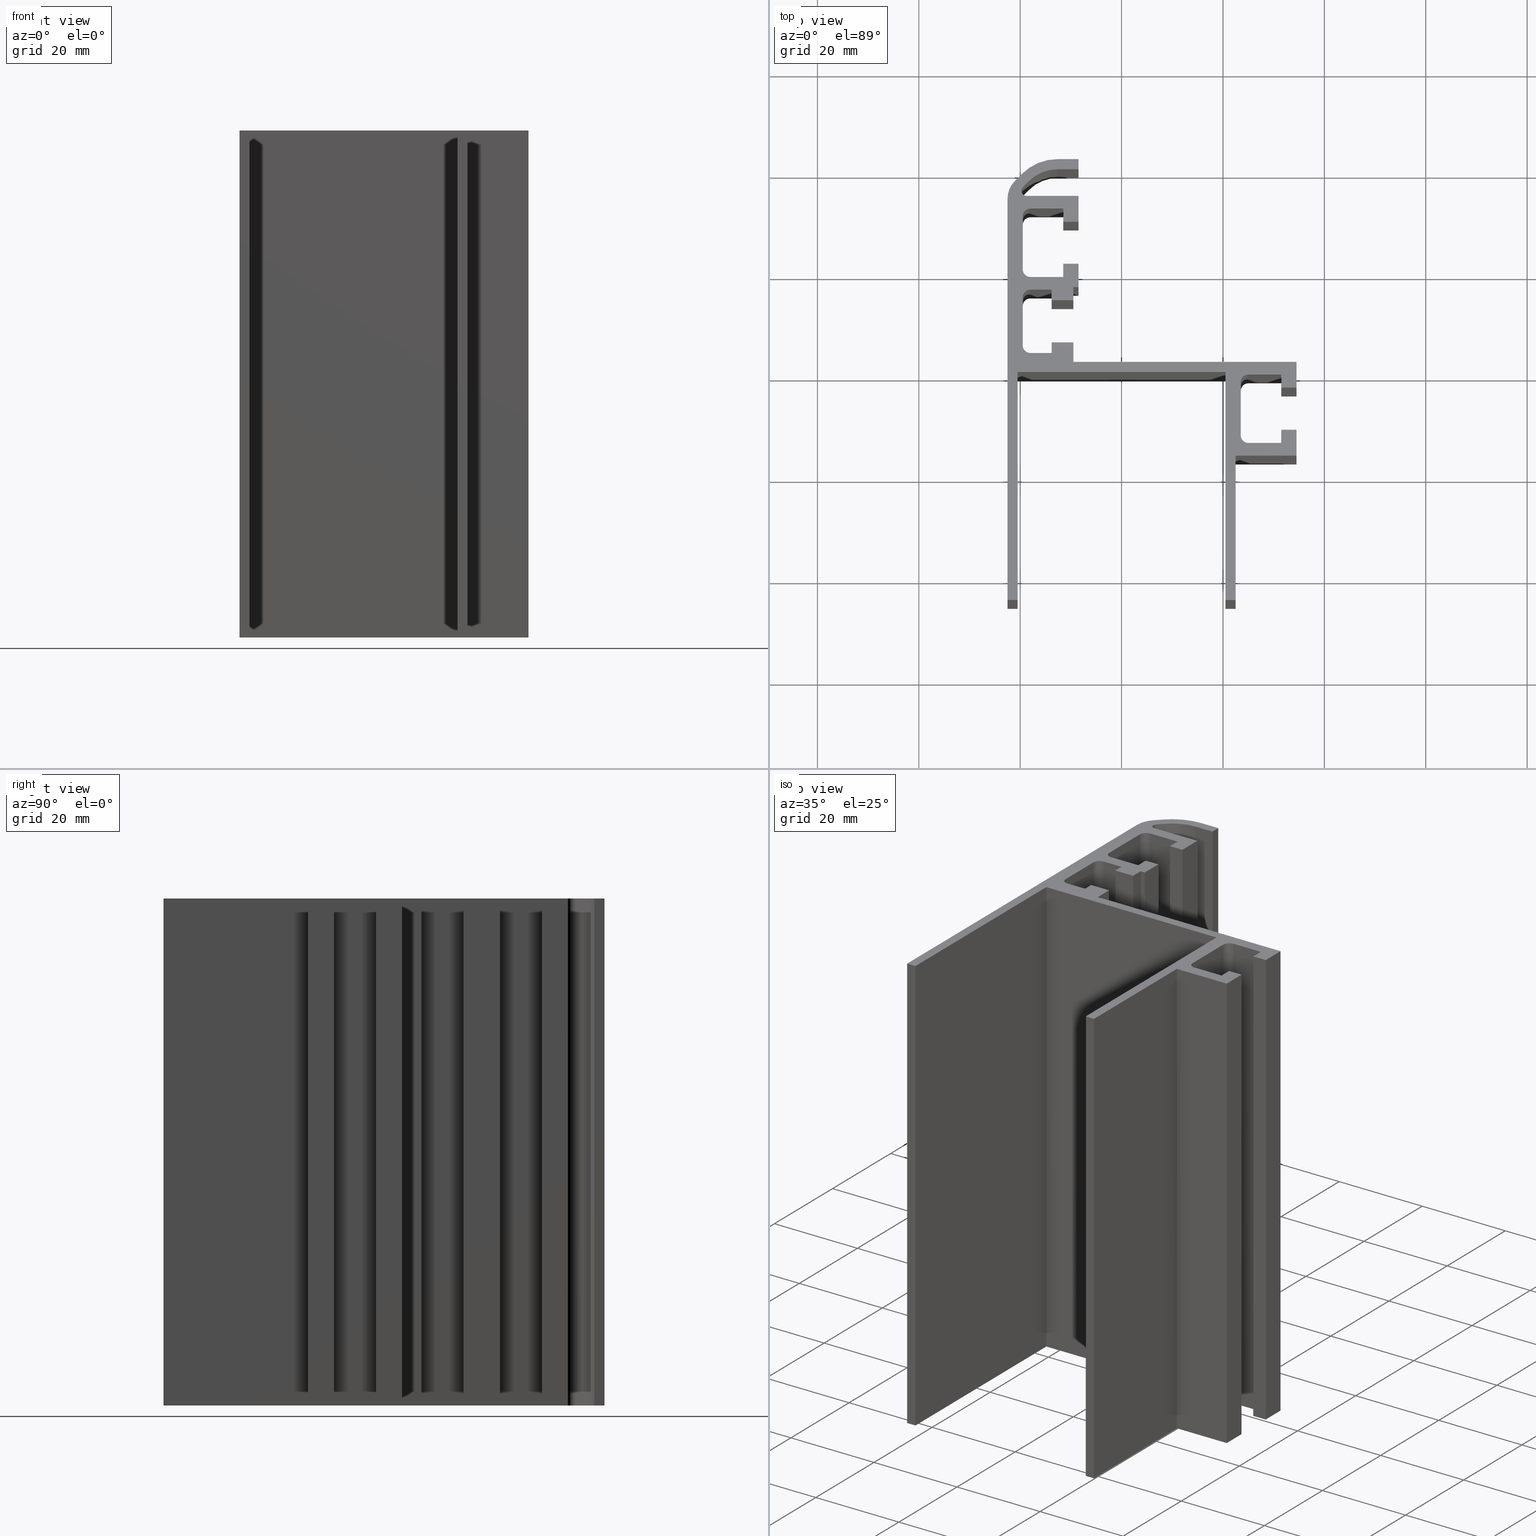
[diagram: canonical four-view strip — front | top / right | iso, engineering-drawing reading convention]
A machine part, canonical four-view strip (front | top / right | iso — engineering-drawing reading convention). The complete STEP part file that produces these views, byte-faithful:
ISO-10303-21;
HEADER;
/* Generated by software containing ST-Developer
 * from STEP Tools, Inc. (www.steptools.com) 
 */

FILE_DESCRIPTION(
/* description */ ('PROF.ALL. 57X87 3C PER INSONORIZZANTE'),
/* implementation_level */ '2;1');

FILE_NAME(
/* name */ 
'Q:\\Catalogo\\1_Profili Dierre\\Per Download Web e catalogo cartaceo\\
Complementari\\BPRDD0000579.stp',
/* time_stamp */ '2018-02-27T15:33:08+01:00',
/* author */ ('fzagni'),
/* organization */ (''),
/* preprocessor_version */ 'ST-DEVELOPER v16.1',
/* originating_system */ 'Autodesk Inventor 2016',
/* authorisation */ '');

FILE_SCHEMA (('AUTOMOTIVE_DESIGN { 1 0 10303 214 3 1 1 }'));
ENDSEC;

DATA;
#10=MECHANICAL_DESIGN_GEOMETRIC_PRESENTATION_REPRESENTATION('',(#13),#1808);
#11=SHAPE_REPRESENTATION_RELATIONSHIP('SRR','None',#1817,#12);
#12=ADVANCED_BREP_SHAPE_REPRESENTATION('',(#14),#1807);
#13=STYLED_ITEM('',(#1826),#14);
#14=MANIFOLD_SOLID_BREP('Solido1',#1116);
#15=CIRCLE('',#1127,1.5);
#16=CIRCLE('',#1128,1.5);
#17=CIRCLE('',#1131,1.5);
#18=CIRCLE('',#1132,1.5);
#19=CIRCLE('',#1143,1.5);
#20=CIRCLE('',#1144,1.5);
#21=CIRCLE('',#1147,1.5);
#22=CIRCLE('',#1148,1.5);
#23=CIRCLE('',#1162,5.);
#24=CIRCLE('',#1163,5.);
#25=CIRCLE('',#1166,10.);
#26=CIRCLE('',#1167,10.);
#27=CIRCLE('',#1172,8.);
#28=CIRCLE('',#1173,8.);
#29=CIRCLE('',#1176,1.);
#30=CIRCLE('',#1177,1.);
#31=CIRCLE('',#1184,1.5);
#32=CIRCLE('',#1185,1.5);
#33=CIRCLE('',#1188,1.5);
#34=CIRCLE('',#1189,1.5);
#35=CYLINDRICAL_SURFACE('',#1126,1.5);
#36=CYLINDRICAL_SURFACE('',#1130,1.5);
#37=CYLINDRICAL_SURFACE('',#1142,1.5);
#38=CYLINDRICAL_SURFACE('',#1146,1.5);
#39=CYLINDRICAL_SURFACE('',#1161,5.);
#40=CYLINDRICAL_SURFACE('',#1165,10.);
#41=CYLINDRICAL_SURFACE('',#1171,8.);
#42=CYLINDRICAL_SURFACE('',#1175,1.);
#43=CYLINDRICAL_SURFACE('',#1183,1.5);
#44=CYLINDRICAL_SURFACE('',#1187,1.5);
#45=FACE_OUTER_BOUND('',#100,.T.);
#46=FACE_OUTER_BOUND('',#101,.T.);
#47=FACE_OUTER_BOUND('',#102,.T.);
#48=FACE_OUTER_BOUND('',#103,.T.);
#49=FACE_OUTER_BOUND('',#104,.T.);
#50=FACE_OUTER_BOUND('',#105,.T.);
#51=FACE_OUTER_BOUND('',#106,.T.);
#52=FACE_OUTER_BOUND('',#107,.T.);
#53=FACE_OUTER_BOUND('',#108,.T.);
#54=FACE_OUTER_BOUND('',#109,.T.);
#55=FACE_OUTER_BOUND('',#110,.T.);
#56=FACE_OUTER_BOUND('',#111,.T.);
#57=FACE_OUTER_BOUND('',#112,.T.);
#58=FACE_OUTER_BOUND('',#113,.T.);
#59=FACE_OUTER_BOUND('',#114,.T.);
#60=FACE_OUTER_BOUND('',#115,.T.);
#61=FACE_OUTER_BOUND('',#116,.T.);
#62=FACE_OUTER_BOUND('',#117,.T.);
#63=FACE_OUTER_BOUND('',#118,.T.);
#64=FACE_OUTER_BOUND('',#119,.T.);
#65=FACE_OUTER_BOUND('',#120,.T.);
#66=FACE_OUTER_BOUND('',#121,.T.);
#67=FACE_OUTER_BOUND('',#122,.T.);
#68=FACE_OUTER_BOUND('',#123,.T.);
#69=FACE_OUTER_BOUND('',#124,.T.);
#70=FACE_OUTER_BOUND('',#125,.T.);
#71=FACE_OUTER_BOUND('',#126,.T.);
#72=FACE_OUTER_BOUND('',#127,.T.);
#73=FACE_OUTER_BOUND('',#128,.T.);
#74=FACE_OUTER_BOUND('',#129,.T.);
#75=FACE_OUTER_BOUND('',#130,.T.);
#76=FACE_OUTER_BOUND('',#131,.T.);
#77=FACE_OUTER_BOUND('',#132,.T.);
#78=FACE_OUTER_BOUND('',#133,.T.);
#79=FACE_OUTER_BOUND('',#134,.T.);
#80=FACE_OUTER_BOUND('',#135,.T.);
#81=FACE_OUTER_BOUND('',#136,.T.);
#82=FACE_OUTER_BOUND('',#137,.T.);
#83=FACE_OUTER_BOUND('',#138,.T.);
#84=FACE_OUTER_BOUND('',#139,.T.);
#85=FACE_OUTER_BOUND('',#140,.T.);
#86=FACE_OUTER_BOUND('',#141,.T.);
#87=FACE_OUTER_BOUND('',#142,.T.);
#88=FACE_OUTER_BOUND('',#143,.T.);
#89=FACE_OUTER_BOUND('',#144,.T.);
#90=FACE_OUTER_BOUND('',#145,.T.);
#91=FACE_OUTER_BOUND('',#146,.T.);
#92=FACE_OUTER_BOUND('',#147,.T.);
#93=FACE_OUTER_BOUND('',#148,.T.);
#94=FACE_OUTER_BOUND('',#149,.T.);
#95=FACE_OUTER_BOUND('',#150,.T.);
#96=FACE_OUTER_BOUND('',#151,.T.);
#97=FACE_OUTER_BOUND('',#152,.T.);
#98=FACE_OUTER_BOUND('',#153,.T.);
#99=FACE_OUTER_BOUND('',#154,.T.);
#100=EDGE_LOOP('',(#698,#699,#700,#701));
#101=EDGE_LOOP('',(#702,#703,#704,#705));
#102=EDGE_LOOP('',(#706,#707,#708,#709));
#103=EDGE_LOOP('',(#710,#711,#712,#713));
#104=EDGE_LOOP('',(#714,#715,#716,#717));
#105=EDGE_LOOP('',(#718,#719,#720,#721));
#106=EDGE_LOOP('',(#722,#723,#724,#725));
#107=EDGE_LOOP('',(#726,#727,#728,#729));
#108=EDGE_LOOP('',(#730,#731,#732,#733));
#109=EDGE_LOOP('',(#734,#735,#736,#737));
#110=EDGE_LOOP('',(#738,#739,#740,#741));
#111=EDGE_LOOP('',(#742,#743,#744,#745));
#112=EDGE_LOOP('',(#746,#747,#748,#749));
#113=EDGE_LOOP('',(#750,#751,#752,#753));
#114=EDGE_LOOP('',(#754,#755,#756,#757));
#115=EDGE_LOOP('',(#758,#759,#760,#761));
#116=EDGE_LOOP('',(#762,#763,#764,#765));
#117=EDGE_LOOP('',(#766,#767,#768,#769));
#118=EDGE_LOOP('',(#770,#771,#772,#773));
#119=EDGE_LOOP('',(#774,#775,#776,#777));
#120=EDGE_LOOP('',(#778,#779,#780,#781));
#121=EDGE_LOOP('',(#782,#783,#784,#785));
#122=EDGE_LOOP('',(#786,#787,#788,#789));
#123=EDGE_LOOP('',(#790,#791,#792,#793));
#124=EDGE_LOOP('',(#794,#795,#796,#797));
#125=EDGE_LOOP('',(#798,#799,#800,#801));
#126=EDGE_LOOP('',(#802,#803,#804,#805));
#127=EDGE_LOOP('',(#806,#807,#808,#809));
#128=EDGE_LOOP('',(#810,#811,#812,#813));
#129=EDGE_LOOP('',(#814,#815,#816,#817));
#130=EDGE_LOOP('',(#818,#819,#820,#821));
#131=EDGE_LOOP('',(#822,#823,#824,#825));
#132=EDGE_LOOP('',(#826,#827,#828,#829));
#133=EDGE_LOOP('',(#830,#831,#832,#833));
#134=EDGE_LOOP('',(#834,#835,#836,#837));
#135=EDGE_LOOP('',(#838,#839,#840,#841));
#136=EDGE_LOOP('',(#842,#843,#844,#845));
#137=EDGE_LOOP('',(#846,#847,#848,#849));
#138=EDGE_LOOP('',(#850,#851,#852,#853));
#139=EDGE_LOOP('',(#854,#855,#856,#857));
#140=EDGE_LOOP('',(#858,#859,#860,#861));
#141=EDGE_LOOP('',(#862,#863,#864,#865));
#142=EDGE_LOOP('',(#866,#867,#868,#869));
#143=EDGE_LOOP('',(#870,#871,#872,#873));
#144=EDGE_LOOP('',(#874,#875,#876,#877));
#145=EDGE_LOOP('',(#878,#879,#880,#881));
#146=EDGE_LOOP('',(#882,#883,#884,#885));
#147=EDGE_LOOP('',(#886,#887,#888,#889));
#148=EDGE_LOOP('',(#890,#891,#892,#893));
#149=EDGE_LOOP('',(#894,#895,#896,#897));
#150=EDGE_LOOP('',(#898,#899,#900,#901));
#151=EDGE_LOOP('',(#902,#903,#904,#905));
#152=EDGE_LOOP('',(#906,#907,#908,#909));
#153=EDGE_LOOP('',(#910,#911,#912,#913,#914,#915,#916,#917,#918,#919,#920,
#921,#922,#923,#924,#925,#926,#927,#928,#929,#930,#931,#932,#933,#934,#935,
#936,#937,#938,#939,#940,#941,#942,#943,#944,#945,#946,#947,#948,#949,#950,
#951,#952,#953,#954,#955,#956,#957,#958,#959,#960,#961,#962));
#154=EDGE_LOOP('',(#963,#964,#965,#966,#967,#968,#969,#970,#971,#972,#973,
#974,#975,#976,#977,#978,#979,#980,#981,#982,#983,#984,#985,#986,#987,#988,
#989,#990,#991,#992,#993,#994,#995,#996,#997,#998,#999,#1000,#1001,#1002,
#1003,#1004,#1005,#1006,#1007,#1008,#1009,#1010,#1011,#1012,#1013,#1014,
#1015));
#155=LINE('',#1488,#294);
#156=LINE('',#1490,#295);
#157=LINE('',#1492,#296);
#158=LINE('',#1493,#297);
#159=LINE('',#1496,#298);
#160=LINE('',#1498,#299);
#161=LINE('',#1499,#300);
#162=LINE('',#1502,#301);
#163=LINE('',#1504,#302);
#164=LINE('',#1505,#303);
#165=LINE('',#1508,#304);
#166=LINE('',#1510,#305);
#167=LINE('',#1511,#306);
#168=LINE('',#1514,#307);
#169=LINE('',#1516,#308);
#170=LINE('',#1517,#309);
#171=LINE('',#1520,#310);
#172=LINE('',#1522,#311);
#173=LINE('',#1523,#312);
#174=LINE('',#1526,#313);
#175=LINE('',#1528,#314);
#176=LINE('',#1529,#315);
#177=LINE('',#1532,#316);
#178=LINE('',#1534,#317);
#179=LINE('',#1535,#318);
#180=LINE('',#1541,#319);
#181=LINE('',#1544,#320);
#182=LINE('',#1546,#321);
#183=LINE('',#1547,#322);
#184=LINE('',#1553,#323);
#185=LINE('',#1556,#324);
#186=LINE('',#1558,#325);
#187=LINE('',#1559,#326);
#188=LINE('',#1562,#327);
#189=LINE('',#1564,#328);
#190=LINE('',#1565,#329);
#191=LINE('',#1568,#330);
#192=LINE('',#1570,#331);
#193=LINE('',#1571,#332);
#194=LINE('',#1574,#333);
#195=LINE('',#1576,#334);
#196=LINE('',#1577,#335);
#197=LINE('',#1580,#336);
#198=LINE('',#1582,#337);
#199=LINE('',#1583,#338);
#200=LINE('',#1586,#339);
#201=LINE('',#1588,#340);
#202=LINE('',#1589,#341);
#203=LINE('',#1592,#342);
#204=LINE('',#1594,#343);
#205=LINE('',#1595,#344);
#206=LINE('',#1598,#345);
#207=LINE('',#1600,#346);
#208=LINE('',#1601,#347);
#209=LINE('',#1604,#348);
#210=LINE('',#1606,#349);
#211=LINE('',#1607,#350);
#212=LINE('',#1613,#351);
#213=LINE('',#1616,#352);
#214=LINE('',#1618,#353);
#215=LINE('',#1619,#354);
#216=LINE('',#1625,#355);
#217=LINE('',#1628,#356);
#218=LINE('',#1630,#357);
#219=LINE('',#1631,#358);
#220=LINE('',#1634,#359);
#221=LINE('',#1636,#360);
#222=LINE('',#1637,#361);
#223=LINE('',#1640,#362);
#224=LINE('',#1642,#363);
#225=LINE('',#1643,#364);
#226=LINE('',#1646,#365);
#227=LINE('',#1648,#366);
#228=LINE('',#1649,#367);
#229=LINE('',#1652,#368);
#230=LINE('',#1654,#369);
#231=LINE('',#1655,#370);
#232=LINE('',#1658,#371);
#233=LINE('',#1660,#372);
#234=LINE('',#1661,#373);
#235=LINE('',#1664,#374);
#236=LINE('',#1666,#375);
#237=LINE('',#1667,#376);
#238=LINE('',#1670,#377);
#239=LINE('',#1672,#378);
#240=LINE('',#1673,#379);
#241=LINE('',#1676,#380);
#242=LINE('',#1678,#381);
#243=LINE('',#1679,#382);
#244=LINE('',#1682,#383);
#245=LINE('',#1684,#384);
#246=LINE('',#1685,#385);
#247=LINE('',#1688,#386);
#248=LINE('',#1690,#387);
#249=LINE('',#1691,#388);
#250=LINE('',#1694,#389);
#251=LINE('',#1696,#390);
#252=LINE('',#1697,#391);
#253=LINE('',#1703,#392);
#254=LINE('',#1706,#393);
#255=LINE('',#1708,#394);
#256=LINE('',#1709,#395);
#257=LINE('',#1715,#396);
#258=LINE('',#1718,#397);
#259=LINE('',#1720,#398);
#260=LINE('',#1721,#399);
#261=LINE('',#1724,#400);
#262=LINE('',#1726,#401);
#263=LINE('',#1727,#402);
#264=LINE('',#1730,#403);
#265=LINE('',#1732,#404);
#266=LINE('',#1733,#405);
#267=LINE('',#1739,#406);
#268=LINE('',#1742,#407);
#269=LINE('',#1744,#408);
#270=LINE('',#1745,#409);
#271=LINE('',#1751,#410);
#272=LINE('',#1754,#411);
#273=LINE('',#1756,#412);
#274=LINE('',#1757,#413);
#275=LINE('',#1760,#414);
#276=LINE('',#1762,#415);
#277=LINE('',#1763,#416);
#278=LINE('',#1766,#417);
#279=LINE('',#1768,#418);
#280=LINE('',#1769,#419);
#281=LINE('',#1772,#420);
#282=LINE('',#1774,#421);
#283=LINE('',#1775,#422);
#284=LINE('',#1778,#423);
#285=LINE('',#1780,#424);
#286=LINE('',#1781,#425);
#287=LINE('',#1787,#426);
#288=LINE('',#1790,#427);
#289=LINE('',#1792,#428);
#290=LINE('',#1793,#429);
#291=LINE('',#1799,#430);
#292=LINE('',#1801,#431);
#293=LINE('',#1802,#432);
#294=VECTOR('',#1197,2.60000000000002);
#295=VECTOR('',#1198,100.);
#296=VECTOR('',#1199,2.60000000000002);
#297=VECTOR('',#1200,100.);
#298=VECTOR('',#1203,3.00000000000006);
#299=VECTOR('',#1204,3.00000000000006);
#300=VECTOR('',#1205,100.);
#301=VECTOR('',#1208,4.60000000000001);
#302=VECTOR('',#1209,4.60000000000001);
#303=VECTOR('',#1210,100.);
#304=VECTOR('',#1213,1.00000000000001);
#305=VECTOR('',#1214,1.00000000000001);
#306=VECTOR('',#1215,100.);
#307=VECTOR('',#1218,2.60000000000003);
#308=VECTOR('',#1219,2.60000000000003);
#309=VECTOR('',#1220,100.);
#310=VECTOR('',#1223,4.30000000000001);
#311=VECTOR('',#1224,4.30000000000001);
#312=VECTOR('',#1225,100.);
#313=VECTOR('',#1228,2.10000000000003);
#314=VECTOR('',#1229,2.10000000000003);
#315=VECTOR('',#1230,100.);
#316=VECTOR('',#1233,4.19999999999994);
#317=VECTOR('',#1234,4.19999999999994);
#318=VECTOR('',#1235,100.);
#319=VECTOR('',#1242,100.);
#320=VECTOR('',#1245,9.50000000000012);
#321=VECTOR('',#1246,9.50000000000012);
#322=VECTOR('',#1247,100.);
#323=VECTOR('',#1254,100.);
#324=VECTOR('',#1257,4.19999999999999);
#325=VECTOR('',#1258,4.19999999999999);
#326=VECTOR('',#1259,100.);
#327=VECTOR('',#1262,2.10000000000013);
#328=VECTOR('',#1263,2.10000000000013);
#329=VECTOR('',#1264,100.);
#330=VECTOR('',#1267,4.30000000000001);
#331=VECTOR('',#1268,4.30000000000001);
#332=VECTOR('',#1269,100.);
#333=VECTOR('',#1272,3.85000000000003);
#334=VECTOR('',#1273,3.85000000000003);
#335=VECTOR('',#1274,100.);
#336=VECTOR('',#1277,43.9999999999997);
#337=VECTOR('',#1278,43.9999999999997);
#338=VECTOR('',#1279,100.);
#339=VECTOR('',#1282,5.10000000000002);
#340=VECTOR('',#1283,5.10000000000002);
#341=VECTOR('',#1284,100.);
#342=VECTOR('',#1287,2.99999999999998);
#343=VECTOR('',#1288,2.99999999999998);
#344=VECTOR('',#1289,100.);
#345=VECTOR('',#1292,2.60000000000002);
#346=VECTOR('',#1293,2.60000000000002);
#347=VECTOR('',#1294,100.);
#348=VECTOR('',#1297,6.50000000000007);
#349=VECTOR('',#1298,6.50000000000007);
#350=VECTOR('',#1299,100.);
#351=VECTOR('',#1306,100.);
#352=VECTOR('',#1309,10.5);
#353=VECTOR('',#1310,10.5);
#354=VECTOR('',#1311,100.);
#355=VECTOR('',#1318,100.);
#356=VECTOR('',#1321,6.49999999999999);
#357=VECTOR('',#1322,6.49999999999999);
#358=VECTOR('',#1323,100.);
#359=VECTOR('',#1326,2.60000000000005);
#360=VECTOR('',#1327,2.60000000000005);
#361=VECTOR('',#1328,100.);
#362=VECTOR('',#1331,2.99999999999998);
#363=VECTOR('',#1332,2.99999999999998);
#364=VECTOR('',#1333,100.);
#365=VECTOR('',#1336,5.09999999999991);
#366=VECTOR('',#1337,5.09999999999991);
#367=VECTOR('',#1338,100.);
#368=VECTOR('',#1341,11.9999999999997);
#369=VECTOR('',#1342,11.9999999999997);
#370=VECTOR('',#1343,100.);
#371=VECTOR('',#1346,28.5);
#372=VECTOR('',#1347,28.5);
#373=VECTOR('',#1348,100.);
#374=VECTOR('',#1351,2.);
#375=VECTOR('',#1352,2.);
#376=VECTOR('',#1353,100.);
#377=VECTOR('',#1356,45.);
#378=VECTOR('',#1357,45.);
#379=VECTOR('',#1358,100.);
#380=VECTOR('',#1361,41.);
#381=VECTOR('',#1362,41.);
#382=VECTOR('',#1363,100.);
#383=VECTOR('',#1366,44.9999999999999);
#384=VECTOR('',#1367,44.9999999999999);
#385=VECTOR('',#1368,100.);
#386=VECTOR('',#1371,1.99999999999999);
#387=VECTOR('',#1372,1.99999999999999);
#388=VECTOR('',#1373,100.);
#389=VECTOR('',#1376,79.1789321881344);
#390=VECTOR('',#1377,79.1789321881344);
#391=VECTOR('',#1378,100.);
#392=VECTOR('',#1385,100.);
#393=VECTOR('',#1388,1.91852454804886);
#394=VECTOR('',#1389,1.91852454804886);
#395=VECTOR('',#1390,100.);
#396=VECTOR('',#1397,100.);
#397=VECTOR('',#1400,4.10786437626728);
#398=VECTOR('',#1401,4.10786437626728);
#399=VECTOR('',#1402,100.);
#400=VECTOR('',#1405,1.99999999999999);
#401=VECTOR('',#1406,1.99999999999999);
#402=VECTOR('',#1407,100.);
#403=VECTOR('',#1410,4.10786437626729);
#404=VECTOR('',#1411,4.10786437626729);
#405=VECTOR('',#1412,100.);
#406=VECTOR('',#1419,100.);
#407=VECTOR('',#1422,1.69669914110099);
#408=VECTOR('',#1423,1.69669914110099);
#409=VECTOR('',#1424,100.);
#410=VECTOR('',#1431,100.);
#411=VECTOR('',#1434,10.2573593128806);
#412=VECTOR('',#1435,10.2573593128806);
#413=VECTOR('',#1436,100.);
#414=VECTOR('',#1439,5.10000000000002);
#415=VECTOR('',#1440,5.10000000000002);
#416=VECTOR('',#1441,100.);
#417=VECTOR('',#1444,2.99999999999999);
#418=VECTOR('',#1445,2.99999999999999);
#419=VECTOR('',#1446,100.);
#420=VECTOR('',#1449,2.60000000000002);
#421=VECTOR('',#1450,2.60000000000002);
#422=VECTOR('',#1451,100.);
#423=VECTOR('',#1454,6.5);
#424=VECTOR('',#1455,6.5);
#425=VECTOR('',#1456,100.);
#426=VECTOR('',#1463,100.);
#427=VECTOR('',#1466,10.5);
#428=VECTOR('',#1467,10.5);
#429=VECTOR('',#1468,100.);
#430=VECTOR('',#1475,100.);
#431=VECTOR('',#1478,6.49999999999973);
#432=VECTOR('',#1479,6.49999999999973);
#433=VERTEX_POINT('',#1486);
#434=VERTEX_POINT('',#1487);
#435=VERTEX_POINT('',#1489);
#436=VERTEX_POINT('',#1491);
#437=VERTEX_POINT('',#1495);
#438=VERTEX_POINT('',#1497);
#439=VERTEX_POINT('',#1501);
#440=VERTEX_POINT('',#1503);
#441=VERTEX_POINT('',#1507);
#442=VERTEX_POINT('',#1509);
#443=VERTEX_POINT('',#1513);
#444=VERTEX_POINT('',#1515);
#445=VERTEX_POINT('',#1519);
#446=VERTEX_POINT('',#1521);
#447=VERTEX_POINT('',#1525);
#448=VERTEX_POINT('',#1527);
#449=VERTEX_POINT('',#1531);
#450=VERTEX_POINT('',#1533);
#451=VERTEX_POINT('',#1537);
#452=VERTEX_POINT('',#1539);
#453=VERTEX_POINT('',#1543);
#454=VERTEX_POINT('',#1545);
#455=VERTEX_POINT('',#1549);
#456=VERTEX_POINT('',#1551);
#457=VERTEX_POINT('',#1555);
#458=VERTEX_POINT('',#1557);
#459=VERTEX_POINT('',#1561);
#460=VERTEX_POINT('',#1563);
#461=VERTEX_POINT('',#1567);
#462=VERTEX_POINT('',#1569);
#463=VERTEX_POINT('',#1573);
#464=VERTEX_POINT('',#1575);
#465=VERTEX_POINT('',#1579);
#466=VERTEX_POINT('',#1581);
#467=VERTEX_POINT('',#1585);
#468=VERTEX_POINT('',#1587);
#469=VERTEX_POINT('',#1591);
#470=VERTEX_POINT('',#1593);
#471=VERTEX_POINT('',#1597);
#472=VERTEX_POINT('',#1599);
#473=VERTEX_POINT('',#1603);
#474=VERTEX_POINT('',#1605);
#475=VERTEX_POINT('',#1609);
#476=VERTEX_POINT('',#1611);
#477=VERTEX_POINT('',#1615);
#478=VERTEX_POINT('',#1617);
#479=VERTEX_POINT('',#1621);
#480=VERTEX_POINT('',#1623);
#481=VERTEX_POINT('',#1627);
#482=VERTEX_POINT('',#1629);
#483=VERTEX_POINT('',#1633);
#484=VERTEX_POINT('',#1635);
#485=VERTEX_POINT('',#1639);
#486=VERTEX_POINT('',#1641);
#487=VERTEX_POINT('',#1645);
#488=VERTEX_POINT('',#1647);
#489=VERTEX_POINT('',#1651);
#490=VERTEX_POINT('',#1653);
#491=VERTEX_POINT('',#1657);
#492=VERTEX_POINT('',#1659);
#493=VERTEX_POINT('',#1663);
#494=VERTEX_POINT('',#1665);
#495=VERTEX_POINT('',#1669);
#496=VERTEX_POINT('',#1671);
#497=VERTEX_POINT('',#1675);
#498=VERTEX_POINT('',#1677);
#499=VERTEX_POINT('',#1681);
#500=VERTEX_POINT('',#1683);
#501=VERTEX_POINT('',#1687);
#502=VERTEX_POINT('',#1689);
#503=VERTEX_POINT('',#1693);
#504=VERTEX_POINT('',#1695);
#505=VERTEX_POINT('',#1699);
#506=VERTEX_POINT('',#1701);
#507=VERTEX_POINT('',#1705);
#508=VERTEX_POINT('',#1707);
#509=VERTEX_POINT('',#1711);
#510=VERTEX_POINT('',#1713);
#511=VERTEX_POINT('',#1717);
#512=VERTEX_POINT('',#1719);
#513=VERTEX_POINT('',#1723);
#514=VERTEX_POINT('',#1725);
#515=VERTEX_POINT('',#1729);
#516=VERTEX_POINT('',#1731);
#517=VERTEX_POINT('',#1735);
#518=VERTEX_POINT('',#1737);
#519=VERTEX_POINT('',#1741);
#520=VERTEX_POINT('',#1743);
#521=VERTEX_POINT('',#1747);
#522=VERTEX_POINT('',#1749);
#523=VERTEX_POINT('',#1753);
#524=VERTEX_POINT('',#1755);
#525=VERTEX_POINT('',#1759);
#526=VERTEX_POINT('',#1761);
#527=VERTEX_POINT('',#1765);
#528=VERTEX_POINT('',#1767);
#529=VERTEX_POINT('',#1771);
#530=VERTEX_POINT('',#1773);
#531=VERTEX_POINT('',#1777);
#532=VERTEX_POINT('',#1779);
#533=VERTEX_POINT('',#1783);
#534=VERTEX_POINT('',#1785);
#535=VERTEX_POINT('',#1789);
#536=VERTEX_POINT('',#1791);
#537=VERTEX_POINT('',#1795);
#538=VERTEX_POINT('',#1797);
#539=EDGE_CURVE('',#433,#434,#155,.T.);
#540=EDGE_CURVE('',#434,#435,#156,.T.);
#541=EDGE_CURVE('',#436,#435,#157,.T.);
#542=EDGE_CURVE('',#433,#436,#158,.T.);
#543=EDGE_CURVE('',#437,#433,#159,.T.);
#544=EDGE_CURVE('',#438,#436,#160,.T.);
#545=EDGE_CURVE('',#437,#438,#161,.T.);
#546=EDGE_CURVE('',#439,#437,#162,.T.);
#547=EDGE_CURVE('',#440,#438,#163,.T.);
#548=EDGE_CURVE('',#439,#440,#164,.T.);
#549=EDGE_CURVE('',#441,#439,#165,.T.);
#550=EDGE_CURVE('',#442,#440,#166,.T.);
#551=EDGE_CURVE('',#441,#442,#167,.T.);
#552=EDGE_CURVE('',#443,#441,#168,.T.);
#553=EDGE_CURVE('',#444,#442,#169,.T.);
#554=EDGE_CURVE('',#443,#444,#170,.T.);
#555=EDGE_CURVE('',#445,#443,#171,.T.);
#556=EDGE_CURVE('',#446,#444,#172,.T.);
#557=EDGE_CURVE('',#445,#446,#173,.T.);
#558=EDGE_CURVE('',#447,#445,#174,.T.);
#559=EDGE_CURVE('',#448,#446,#175,.T.);
#560=EDGE_CURVE('',#447,#448,#176,.T.);
#561=EDGE_CURVE('',#449,#447,#177,.T.);
#562=EDGE_CURVE('',#450,#448,#178,.T.);
#563=EDGE_CURVE('',#449,#450,#179,.T.);
#564=EDGE_CURVE('',#451,#449,#15,.T.);
#565=EDGE_CURVE('',#452,#450,#16,.T.);
#566=EDGE_CURVE('',#451,#452,#180,.T.);
#567=EDGE_CURVE('',#453,#451,#181,.T.);
#568=EDGE_CURVE('',#454,#452,#182,.T.);
#569=EDGE_CURVE('',#453,#454,#183,.T.);
#570=EDGE_CURVE('',#455,#453,#17,.T.);
#571=EDGE_CURVE('',#456,#454,#18,.T.);
#572=EDGE_CURVE('',#455,#456,#184,.T.);
#573=EDGE_CURVE('',#457,#455,#185,.T.);
#574=EDGE_CURVE('',#458,#456,#186,.T.);
#575=EDGE_CURVE('',#457,#458,#187,.T.);
#576=EDGE_CURVE('',#459,#457,#188,.T.);
#577=EDGE_CURVE('',#460,#458,#189,.T.);
#578=EDGE_CURVE('',#459,#460,#190,.T.);
#579=EDGE_CURVE('',#461,#459,#191,.T.);
#580=EDGE_CURVE('',#462,#460,#192,.T.);
#581=EDGE_CURVE('',#461,#462,#193,.T.);
#582=EDGE_CURVE('',#463,#461,#194,.T.);
#583=EDGE_CURVE('',#464,#462,#195,.T.);
#584=EDGE_CURVE('',#463,#464,#196,.T.);
#585=EDGE_CURVE('',#465,#463,#197,.T.);
#586=EDGE_CURVE('',#466,#464,#198,.T.);
#587=EDGE_CURVE('',#465,#466,#199,.T.);
#588=EDGE_CURVE('',#467,#465,#200,.T.);
#589=EDGE_CURVE('',#468,#466,#201,.T.);
#590=EDGE_CURVE('',#467,#468,#202,.T.);
#591=EDGE_CURVE('',#469,#467,#203,.T.);
#592=EDGE_CURVE('',#470,#468,#204,.T.);
#593=EDGE_CURVE('',#469,#470,#205,.T.);
#594=EDGE_CURVE('',#471,#469,#206,.T.);
#595=EDGE_CURVE('',#472,#470,#207,.T.);
#596=EDGE_CURVE('',#471,#472,#208,.T.);
#597=EDGE_CURVE('',#473,#471,#209,.T.);
#598=EDGE_CURVE('',#474,#472,#210,.T.);
#599=EDGE_CURVE('',#473,#474,#211,.T.);
#600=EDGE_CURVE('',#475,#473,#19,.T.);
#601=EDGE_CURVE('',#476,#474,#20,.T.);
#602=EDGE_CURVE('',#475,#476,#212,.T.);
#603=EDGE_CURVE('',#477,#475,#213,.T.);
#604=EDGE_CURVE('',#478,#476,#214,.T.);
#605=EDGE_CURVE('',#477,#478,#215,.T.);
#606=EDGE_CURVE('',#479,#477,#21,.T.);
#607=EDGE_CURVE('',#480,#478,#22,.T.);
#608=EDGE_CURVE('',#479,#480,#216,.T.);
#609=EDGE_CURVE('',#481,#479,#217,.T.);
#610=EDGE_CURVE('',#482,#480,#218,.T.);
#611=EDGE_CURVE('',#481,#482,#219,.T.);
#612=EDGE_CURVE('',#483,#481,#220,.T.);
#613=EDGE_CURVE('',#484,#482,#221,.T.);
#614=EDGE_CURVE('',#483,#484,#222,.T.);
#615=EDGE_CURVE('',#485,#483,#223,.T.);
#616=EDGE_CURVE('',#486,#484,#224,.T.);
#617=EDGE_CURVE('',#485,#486,#225,.T.);
#618=EDGE_CURVE('',#487,#485,#226,.T.);
#619=EDGE_CURVE('',#488,#486,#227,.T.);
#620=EDGE_CURVE('',#487,#488,#228,.T.);
#621=EDGE_CURVE('',#489,#487,#229,.T.);
#622=EDGE_CURVE('',#490,#488,#230,.T.);
#623=EDGE_CURVE('',#489,#490,#231,.T.);
#624=EDGE_CURVE('',#491,#489,#232,.T.);
#625=EDGE_CURVE('',#492,#490,#233,.T.);
#626=EDGE_CURVE('',#491,#492,#234,.T.);
#627=EDGE_CURVE('',#493,#491,#235,.T.);
#628=EDGE_CURVE('',#494,#492,#236,.T.);
#629=EDGE_CURVE('',#493,#494,#237,.T.);
#630=EDGE_CURVE('',#495,#493,#238,.T.);
#631=EDGE_CURVE('',#496,#494,#239,.T.);
#632=EDGE_CURVE('',#495,#496,#240,.T.);
#633=EDGE_CURVE('',#497,#495,#241,.T.);
#634=EDGE_CURVE('',#498,#496,#242,.T.);
#635=EDGE_CURVE('',#497,#498,#243,.T.);
#636=EDGE_CURVE('',#499,#497,#244,.T.);
#637=EDGE_CURVE('',#500,#498,#245,.T.);
#638=EDGE_CURVE('',#499,#500,#246,.T.);
#639=EDGE_CURVE('',#501,#499,#247,.T.);
#640=EDGE_CURVE('',#502,#500,#248,.T.);
#641=EDGE_CURVE('',#501,#502,#249,.T.);
#642=EDGE_CURVE('',#503,#501,#250,.T.);
#643=EDGE_CURVE('',#504,#502,#251,.T.);
#644=EDGE_CURVE('',#503,#504,#252,.T.);
#645=EDGE_CURVE('',#505,#503,#23,.T.);
#646=EDGE_CURVE('',#506,#504,#24,.T.);
#647=EDGE_CURVE('',#505,#506,#253,.T.);
#648=EDGE_CURVE('',#507,#505,#254,.T.);
#649=EDGE_CURVE('',#508,#506,#255,.T.);
#650=EDGE_CURVE('',#507,#508,#256,.T.);
#651=EDGE_CURVE('',#509,#507,#25,.T.);
#652=EDGE_CURVE('',#510,#508,#26,.T.);
#653=EDGE_CURVE('',#509,#510,#257,.T.);
#654=EDGE_CURVE('',#511,#509,#258,.T.);
#655=EDGE_CURVE('',#512,#510,#259,.T.);
#656=EDGE_CURVE('',#511,#512,#260,.T.);
#657=EDGE_CURVE('',#513,#511,#261,.T.);
#658=EDGE_CURVE('',#514,#512,#262,.T.);
#659=EDGE_CURVE('',#513,#514,#263,.T.);
#660=EDGE_CURVE('',#515,#513,#264,.T.);
#661=EDGE_CURVE('',#516,#514,#265,.T.);
#662=EDGE_CURVE('',#515,#516,#266,.T.);
#663=EDGE_CURVE('',#517,#515,#27,.T.);
#664=EDGE_CURVE('',#518,#516,#28,.T.);
#665=EDGE_CURVE('',#517,#518,#267,.T.);
#666=EDGE_CURVE('',#519,#517,#268,.T.);
#667=EDGE_CURVE('',#520,#518,#269,.T.);
#668=EDGE_CURVE('',#519,#520,#270,.T.);
#669=EDGE_CURVE('',#521,#519,#29,.T.);
#670=EDGE_CURVE('',#522,#520,#30,.T.);
#671=EDGE_CURVE('',#521,#522,#271,.T.);
#672=EDGE_CURVE('',#523,#521,#272,.T.);
#673=EDGE_CURVE('',#524,#522,#273,.T.);
#674=EDGE_CURVE('',#523,#524,#274,.T.);
#675=EDGE_CURVE('',#525,#523,#275,.T.);
#676=EDGE_CURVE('',#526,#524,#276,.T.);
#677=EDGE_CURVE('',#525,#526,#277,.T.);
#678=EDGE_CURVE('',#527,#525,#278,.T.);
#679=EDGE_CURVE('',#528,#526,#279,.T.);
#680=EDGE_CURVE('',#527,#528,#280,.T.);
#681=EDGE_CURVE('',#529,#527,#281,.T.);
#682=EDGE_CURVE('',#530,#528,#282,.T.);
#683=EDGE_CURVE('',#529,#530,#283,.T.);
#684=EDGE_CURVE('',#531,#529,#284,.T.);
#685=EDGE_CURVE('',#532,#530,#285,.T.);
#686=EDGE_CURVE('',#531,#532,#286,.T.);
#687=EDGE_CURVE('',#533,#531,#31,.T.);
#688=EDGE_CURVE('',#534,#532,#32,.T.);
#689=EDGE_CURVE('',#533,#534,#287,.T.);
#690=EDGE_CURVE('',#535,#533,#288,.T.);
#691=EDGE_CURVE('',#536,#534,#289,.T.);
#692=EDGE_CURVE('',#535,#536,#290,.T.);
#693=EDGE_CURVE('',#537,#535,#33,.T.);
#694=EDGE_CURVE('',#538,#536,#34,.T.);
#695=EDGE_CURVE('',#537,#538,#291,.T.);
#696=EDGE_CURVE('',#434,#537,#292,.T.);
#697=EDGE_CURVE('',#435,#538,#293,.T.);
#698=ORIENTED_EDGE('',*,*,#539,.T.);
#699=ORIENTED_EDGE('',*,*,#540,.T.);
#700=ORIENTED_EDGE('',*,*,#541,.F.);
#701=ORIENTED_EDGE('',*,*,#542,.F.);
#702=ORIENTED_EDGE('',*,*,#543,.T.);
#703=ORIENTED_EDGE('',*,*,#542,.T.);
#704=ORIENTED_EDGE('',*,*,#544,.F.);
#705=ORIENTED_EDGE('',*,*,#545,.F.);
#706=ORIENTED_EDGE('',*,*,#546,.T.);
#707=ORIENTED_EDGE('',*,*,#545,.T.);
#708=ORIENTED_EDGE('',*,*,#547,.F.);
#709=ORIENTED_EDGE('',*,*,#548,.F.);
#710=ORIENTED_EDGE('',*,*,#549,.T.);
#711=ORIENTED_EDGE('',*,*,#548,.T.);
#712=ORIENTED_EDGE('',*,*,#550,.F.);
#713=ORIENTED_EDGE('',*,*,#551,.F.);
#714=ORIENTED_EDGE('',*,*,#552,.T.);
#715=ORIENTED_EDGE('',*,*,#551,.T.);
#716=ORIENTED_EDGE('',*,*,#553,.F.);
#717=ORIENTED_EDGE('',*,*,#554,.F.);
#718=ORIENTED_EDGE('',*,*,#555,.T.);
#719=ORIENTED_EDGE('',*,*,#554,.T.);
#720=ORIENTED_EDGE('',*,*,#556,.F.);
#721=ORIENTED_EDGE('',*,*,#557,.F.);
#722=ORIENTED_EDGE('',*,*,#558,.T.);
#723=ORIENTED_EDGE('',*,*,#557,.T.);
#724=ORIENTED_EDGE('',*,*,#559,.F.);
#725=ORIENTED_EDGE('',*,*,#560,.F.);
#726=ORIENTED_EDGE('',*,*,#561,.T.);
#727=ORIENTED_EDGE('',*,*,#560,.T.);
#728=ORIENTED_EDGE('',*,*,#562,.F.);
#729=ORIENTED_EDGE('',*,*,#563,.F.);
#730=ORIENTED_EDGE('',*,*,#564,.T.);
#731=ORIENTED_EDGE('',*,*,#563,.T.);
#732=ORIENTED_EDGE('',*,*,#565,.F.);
#733=ORIENTED_EDGE('',*,*,#566,.F.);
#734=ORIENTED_EDGE('',*,*,#567,.T.);
#735=ORIENTED_EDGE('',*,*,#566,.T.);
#736=ORIENTED_EDGE('',*,*,#568,.F.);
#737=ORIENTED_EDGE('',*,*,#569,.F.);
#738=ORIENTED_EDGE('',*,*,#570,.T.);
#739=ORIENTED_EDGE('',*,*,#569,.T.);
#740=ORIENTED_EDGE('',*,*,#571,.F.);
#741=ORIENTED_EDGE('',*,*,#572,.F.);
#742=ORIENTED_EDGE('',*,*,#573,.T.);
#743=ORIENTED_EDGE('',*,*,#572,.T.);
#744=ORIENTED_EDGE('',*,*,#574,.F.);
#745=ORIENTED_EDGE('',*,*,#575,.F.);
#746=ORIENTED_EDGE('',*,*,#576,.T.);
#747=ORIENTED_EDGE('',*,*,#575,.T.);
#748=ORIENTED_EDGE('',*,*,#577,.F.);
#749=ORIENTED_EDGE('',*,*,#578,.F.);
#750=ORIENTED_EDGE('',*,*,#579,.T.);
#751=ORIENTED_EDGE('',*,*,#578,.T.);
#752=ORIENTED_EDGE('',*,*,#580,.F.);
#753=ORIENTED_EDGE('',*,*,#581,.F.);
#754=ORIENTED_EDGE('',*,*,#582,.T.);
#755=ORIENTED_EDGE('',*,*,#581,.T.);
#756=ORIENTED_EDGE('',*,*,#583,.F.);
#757=ORIENTED_EDGE('',*,*,#584,.F.);
#758=ORIENTED_EDGE('',*,*,#585,.T.);
#759=ORIENTED_EDGE('',*,*,#584,.T.);
#760=ORIENTED_EDGE('',*,*,#586,.F.);
#761=ORIENTED_EDGE('',*,*,#587,.F.);
#762=ORIENTED_EDGE('',*,*,#588,.T.);
#763=ORIENTED_EDGE('',*,*,#587,.T.);
#764=ORIENTED_EDGE('',*,*,#589,.F.);
#765=ORIENTED_EDGE('',*,*,#590,.F.);
#766=ORIENTED_EDGE('',*,*,#591,.T.);
#767=ORIENTED_EDGE('',*,*,#590,.T.);
#768=ORIENTED_EDGE('',*,*,#592,.F.);
#769=ORIENTED_EDGE('',*,*,#593,.F.);
#770=ORIENTED_EDGE('',*,*,#594,.T.);
#771=ORIENTED_EDGE('',*,*,#593,.T.);
#772=ORIENTED_EDGE('',*,*,#595,.F.);
#773=ORIENTED_EDGE('',*,*,#596,.F.);
#774=ORIENTED_EDGE('',*,*,#597,.T.);
#775=ORIENTED_EDGE('',*,*,#596,.T.);
#776=ORIENTED_EDGE('',*,*,#598,.F.);
#777=ORIENTED_EDGE('',*,*,#599,.F.);
#778=ORIENTED_EDGE('',*,*,#600,.T.);
#779=ORIENTED_EDGE('',*,*,#599,.T.);
#780=ORIENTED_EDGE('',*,*,#601,.F.);
#781=ORIENTED_EDGE('',*,*,#602,.F.);
#782=ORIENTED_EDGE('',*,*,#603,.T.);
#783=ORIENTED_EDGE('',*,*,#602,.T.);
#784=ORIENTED_EDGE('',*,*,#604,.F.);
#785=ORIENTED_EDGE('',*,*,#605,.F.);
#786=ORIENTED_EDGE('',*,*,#606,.T.);
#787=ORIENTED_EDGE('',*,*,#605,.T.);
#788=ORIENTED_EDGE('',*,*,#607,.F.);
#789=ORIENTED_EDGE('',*,*,#608,.F.);
#790=ORIENTED_EDGE('',*,*,#609,.T.);
#791=ORIENTED_EDGE('',*,*,#608,.T.);
#792=ORIENTED_EDGE('',*,*,#610,.F.);
#793=ORIENTED_EDGE('',*,*,#611,.F.);
#794=ORIENTED_EDGE('',*,*,#612,.T.);
#795=ORIENTED_EDGE('',*,*,#611,.T.);
#796=ORIENTED_EDGE('',*,*,#613,.F.);
#797=ORIENTED_EDGE('',*,*,#614,.F.);
#798=ORIENTED_EDGE('',*,*,#615,.T.);
#799=ORIENTED_EDGE('',*,*,#614,.T.);
#800=ORIENTED_EDGE('',*,*,#616,.F.);
#801=ORIENTED_EDGE('',*,*,#617,.F.);
#802=ORIENTED_EDGE('',*,*,#618,.T.);
#803=ORIENTED_EDGE('',*,*,#617,.T.);
#804=ORIENTED_EDGE('',*,*,#619,.F.);
#805=ORIENTED_EDGE('',*,*,#620,.F.);
#806=ORIENTED_EDGE('',*,*,#621,.T.);
#807=ORIENTED_EDGE('',*,*,#620,.T.);
#808=ORIENTED_EDGE('',*,*,#622,.F.);
#809=ORIENTED_EDGE('',*,*,#623,.F.);
#810=ORIENTED_EDGE('',*,*,#624,.T.);
#811=ORIENTED_EDGE('',*,*,#623,.T.);
#812=ORIENTED_EDGE('',*,*,#625,.F.);
#813=ORIENTED_EDGE('',*,*,#626,.F.);
#814=ORIENTED_EDGE('',*,*,#627,.T.);
#815=ORIENTED_EDGE('',*,*,#626,.T.);
#816=ORIENTED_EDGE('',*,*,#628,.F.);
#817=ORIENTED_EDGE('',*,*,#629,.F.);
#818=ORIENTED_EDGE('',*,*,#630,.T.);
#819=ORIENTED_EDGE('',*,*,#629,.T.);
#820=ORIENTED_EDGE('',*,*,#631,.F.);
#821=ORIENTED_EDGE('',*,*,#632,.F.);
#822=ORIENTED_EDGE('',*,*,#633,.T.);
#823=ORIENTED_EDGE('',*,*,#632,.T.);
#824=ORIENTED_EDGE('',*,*,#634,.F.);
#825=ORIENTED_EDGE('',*,*,#635,.F.);
#826=ORIENTED_EDGE('',*,*,#636,.T.);
#827=ORIENTED_EDGE('',*,*,#635,.T.);
#828=ORIENTED_EDGE('',*,*,#637,.F.);
#829=ORIENTED_EDGE('',*,*,#638,.F.);
#830=ORIENTED_EDGE('',*,*,#639,.T.);
#831=ORIENTED_EDGE('',*,*,#638,.T.);
#832=ORIENTED_EDGE('',*,*,#640,.F.);
#833=ORIENTED_EDGE('',*,*,#641,.F.);
#834=ORIENTED_EDGE('',*,*,#642,.T.);
#835=ORIENTED_EDGE('',*,*,#641,.T.);
#836=ORIENTED_EDGE('',*,*,#643,.F.);
#837=ORIENTED_EDGE('',*,*,#644,.F.);
#838=ORIENTED_EDGE('',*,*,#645,.T.);
#839=ORIENTED_EDGE('',*,*,#644,.T.);
#840=ORIENTED_EDGE('',*,*,#646,.F.);
#841=ORIENTED_EDGE('',*,*,#647,.F.);
#842=ORIENTED_EDGE('',*,*,#648,.T.);
#843=ORIENTED_EDGE('',*,*,#647,.T.);
#844=ORIENTED_EDGE('',*,*,#649,.F.);
#845=ORIENTED_EDGE('',*,*,#650,.F.);
#846=ORIENTED_EDGE('',*,*,#651,.T.);
#847=ORIENTED_EDGE('',*,*,#650,.T.);
#848=ORIENTED_EDGE('',*,*,#652,.F.);
#849=ORIENTED_EDGE('',*,*,#653,.F.);
#850=ORIENTED_EDGE('',*,*,#654,.T.);
#851=ORIENTED_EDGE('',*,*,#653,.T.);
#852=ORIENTED_EDGE('',*,*,#655,.F.);
#853=ORIENTED_EDGE('',*,*,#656,.F.);
#854=ORIENTED_EDGE('',*,*,#657,.T.);
#855=ORIENTED_EDGE('',*,*,#656,.T.);
#856=ORIENTED_EDGE('',*,*,#658,.F.);
#857=ORIENTED_EDGE('',*,*,#659,.F.);
#858=ORIENTED_EDGE('',*,*,#660,.T.);
#859=ORIENTED_EDGE('',*,*,#659,.T.);
#860=ORIENTED_EDGE('',*,*,#661,.F.);
#861=ORIENTED_EDGE('',*,*,#662,.F.);
#862=ORIENTED_EDGE('',*,*,#663,.T.);
#863=ORIENTED_EDGE('',*,*,#662,.T.);
#864=ORIENTED_EDGE('',*,*,#664,.F.);
#865=ORIENTED_EDGE('',*,*,#665,.F.);
#866=ORIENTED_EDGE('',*,*,#666,.T.);
#867=ORIENTED_EDGE('',*,*,#665,.T.);
#868=ORIENTED_EDGE('',*,*,#667,.F.);
#869=ORIENTED_EDGE('',*,*,#668,.F.);
#870=ORIENTED_EDGE('',*,*,#669,.T.);
#871=ORIENTED_EDGE('',*,*,#668,.T.);
#872=ORIENTED_EDGE('',*,*,#670,.F.);
#873=ORIENTED_EDGE('',*,*,#671,.F.);
#874=ORIENTED_EDGE('',*,*,#672,.T.);
#875=ORIENTED_EDGE('',*,*,#671,.T.);
#876=ORIENTED_EDGE('',*,*,#673,.F.);
#877=ORIENTED_EDGE('',*,*,#674,.F.);
#878=ORIENTED_EDGE('',*,*,#675,.T.);
#879=ORIENTED_EDGE('',*,*,#674,.T.);
#880=ORIENTED_EDGE('',*,*,#676,.F.);
#881=ORIENTED_EDGE('',*,*,#677,.F.);
#882=ORIENTED_EDGE('',*,*,#678,.T.);
#883=ORIENTED_EDGE('',*,*,#677,.T.);
#884=ORIENTED_EDGE('',*,*,#679,.F.);
#885=ORIENTED_EDGE('',*,*,#680,.F.);
#886=ORIENTED_EDGE('',*,*,#681,.T.);
#887=ORIENTED_EDGE('',*,*,#680,.T.);
#888=ORIENTED_EDGE('',*,*,#682,.F.);
#889=ORIENTED_EDGE('',*,*,#683,.F.);
#890=ORIENTED_EDGE('',*,*,#684,.T.);
#891=ORIENTED_EDGE('',*,*,#683,.T.);
#892=ORIENTED_EDGE('',*,*,#685,.F.);
#893=ORIENTED_EDGE('',*,*,#686,.F.);
#894=ORIENTED_EDGE('',*,*,#687,.T.);
#895=ORIENTED_EDGE('',*,*,#686,.T.);
#896=ORIENTED_EDGE('',*,*,#688,.F.);
#897=ORIENTED_EDGE('',*,*,#689,.F.);
#898=ORIENTED_EDGE('',*,*,#690,.T.);
#899=ORIENTED_EDGE('',*,*,#689,.T.);
#900=ORIENTED_EDGE('',*,*,#691,.F.);
#901=ORIENTED_EDGE('',*,*,#692,.F.);
#902=ORIENTED_EDGE('',*,*,#693,.T.);
#903=ORIENTED_EDGE('',*,*,#692,.T.);
#904=ORIENTED_EDGE('',*,*,#694,.F.);
#905=ORIENTED_EDGE('',*,*,#695,.F.);
#906=ORIENTED_EDGE('',*,*,#696,.T.);
#907=ORIENTED_EDGE('',*,*,#695,.T.);
#908=ORIENTED_EDGE('',*,*,#697,.F.);
#909=ORIENTED_EDGE('',*,*,#540,.F.);
#910=ORIENTED_EDGE('',*,*,#697,.T.);
#911=ORIENTED_EDGE('',*,*,#694,.T.);
#912=ORIENTED_EDGE('',*,*,#691,.T.);
#913=ORIENTED_EDGE('',*,*,#688,.T.);
#914=ORIENTED_EDGE('',*,*,#685,.T.);
#915=ORIENTED_EDGE('',*,*,#682,.T.);
#916=ORIENTED_EDGE('',*,*,#679,.T.);
#917=ORIENTED_EDGE('',*,*,#676,.T.);
#918=ORIENTED_EDGE('',*,*,#673,.T.);
#919=ORIENTED_EDGE('',*,*,#670,.T.);
#920=ORIENTED_EDGE('',*,*,#667,.T.);
#921=ORIENTED_EDGE('',*,*,#664,.T.);
#922=ORIENTED_EDGE('',*,*,#661,.T.);
#923=ORIENTED_EDGE('',*,*,#658,.T.);
#924=ORIENTED_EDGE('',*,*,#655,.T.);
#925=ORIENTED_EDGE('',*,*,#652,.T.);
#926=ORIENTED_EDGE('',*,*,#649,.T.);
#927=ORIENTED_EDGE('',*,*,#646,.T.);
#928=ORIENTED_EDGE('',*,*,#643,.T.);
#929=ORIENTED_EDGE('',*,*,#640,.T.);
#930=ORIENTED_EDGE('',*,*,#637,.T.);
#931=ORIENTED_EDGE('',*,*,#634,.T.);
#932=ORIENTED_EDGE('',*,*,#631,.T.);
#933=ORIENTED_EDGE('',*,*,#628,.T.);
#934=ORIENTED_EDGE('',*,*,#625,.T.);
#935=ORIENTED_EDGE('',*,*,#622,.T.);
#936=ORIENTED_EDGE('',*,*,#619,.T.);
#937=ORIENTED_EDGE('',*,*,#616,.T.);
#938=ORIENTED_EDGE('',*,*,#613,.T.);
#939=ORIENTED_EDGE('',*,*,#610,.T.);
#940=ORIENTED_EDGE('',*,*,#607,.T.);
#941=ORIENTED_EDGE('',*,*,#604,.T.);
#942=ORIENTED_EDGE('',*,*,#601,.T.);
#943=ORIENTED_EDGE('',*,*,#598,.T.);
#944=ORIENTED_EDGE('',*,*,#595,.T.);
#945=ORIENTED_EDGE('',*,*,#592,.T.);
#946=ORIENTED_EDGE('',*,*,#589,.T.);
#947=ORIENTED_EDGE('',*,*,#586,.T.);
#948=ORIENTED_EDGE('',*,*,#583,.T.);
#949=ORIENTED_EDGE('',*,*,#580,.T.);
#950=ORIENTED_EDGE('',*,*,#577,.T.);
#951=ORIENTED_EDGE('',*,*,#574,.T.);
#952=ORIENTED_EDGE('',*,*,#571,.T.);
#953=ORIENTED_EDGE('',*,*,#568,.T.);
#954=ORIENTED_EDGE('',*,*,#565,.T.);
#955=ORIENTED_EDGE('',*,*,#562,.T.);
#956=ORIENTED_EDGE('',*,*,#559,.T.);
#957=ORIENTED_EDGE('',*,*,#556,.T.);
#958=ORIENTED_EDGE('',*,*,#553,.T.);
#959=ORIENTED_EDGE('',*,*,#550,.T.);
#960=ORIENTED_EDGE('',*,*,#547,.T.);
#961=ORIENTED_EDGE('',*,*,#544,.T.);
#962=ORIENTED_EDGE('',*,*,#541,.T.);
#963=ORIENTED_EDGE('',*,*,#696,.F.);
#964=ORIENTED_EDGE('',*,*,#539,.F.);
#965=ORIENTED_EDGE('',*,*,#543,.F.);
#966=ORIENTED_EDGE('',*,*,#546,.F.);
#967=ORIENTED_EDGE('',*,*,#549,.F.);
#968=ORIENTED_EDGE('',*,*,#552,.F.);
#969=ORIENTED_EDGE('',*,*,#555,.F.);
#970=ORIENTED_EDGE('',*,*,#558,.F.);
#971=ORIENTED_EDGE('',*,*,#561,.F.);
#972=ORIENTED_EDGE('',*,*,#564,.F.);
#973=ORIENTED_EDGE('',*,*,#567,.F.);
#974=ORIENTED_EDGE('',*,*,#570,.F.);
#975=ORIENTED_EDGE('',*,*,#573,.F.);
#976=ORIENTED_EDGE('',*,*,#576,.F.);
#977=ORIENTED_EDGE('',*,*,#579,.F.);
#978=ORIENTED_EDGE('',*,*,#582,.F.);
#979=ORIENTED_EDGE('',*,*,#585,.F.);
#980=ORIENTED_EDGE('',*,*,#588,.F.);
#981=ORIENTED_EDGE('',*,*,#591,.F.);
#982=ORIENTED_EDGE('',*,*,#594,.F.);
#983=ORIENTED_EDGE('',*,*,#597,.F.);
#984=ORIENTED_EDGE('',*,*,#600,.F.);
#985=ORIENTED_EDGE('',*,*,#603,.F.);
#986=ORIENTED_EDGE('',*,*,#606,.F.);
#987=ORIENTED_EDGE('',*,*,#609,.F.);
#988=ORIENTED_EDGE('',*,*,#612,.F.);
#989=ORIENTED_EDGE('',*,*,#615,.F.);
#990=ORIENTED_EDGE('',*,*,#618,.F.);
#991=ORIENTED_EDGE('',*,*,#621,.F.);
#992=ORIENTED_EDGE('',*,*,#624,.F.);
#993=ORIENTED_EDGE('',*,*,#627,.F.);
#994=ORIENTED_EDGE('',*,*,#630,.F.);
#995=ORIENTED_EDGE('',*,*,#633,.F.);
#996=ORIENTED_EDGE('',*,*,#636,.F.);
#997=ORIENTED_EDGE('',*,*,#639,.F.);
#998=ORIENTED_EDGE('',*,*,#642,.F.);
#999=ORIENTED_EDGE('',*,*,#645,.F.);
#1000=ORIENTED_EDGE('',*,*,#648,.F.);
#1001=ORIENTED_EDGE('',*,*,#651,.F.);
#1002=ORIENTED_EDGE('',*,*,#654,.F.);
#1003=ORIENTED_EDGE('',*,*,#657,.F.);
#1004=ORIENTED_EDGE('',*,*,#660,.F.);
#1005=ORIENTED_EDGE('',*,*,#663,.F.);
#1006=ORIENTED_EDGE('',*,*,#666,.F.);
#1007=ORIENTED_EDGE('',*,*,#669,.F.);
#1008=ORIENTED_EDGE('',*,*,#672,.F.);
#1009=ORIENTED_EDGE('',*,*,#675,.F.);
#1010=ORIENTED_EDGE('',*,*,#678,.F.);
#1011=ORIENTED_EDGE('',*,*,#681,.F.);
#1012=ORIENTED_EDGE('',*,*,#684,.F.);
#1013=ORIENTED_EDGE('',*,*,#687,.F.);
#1014=ORIENTED_EDGE('',*,*,#690,.F.);
#1015=ORIENTED_EDGE('',*,*,#693,.F.);
#1016=PLANE('',#1118);
#1017=PLANE('',#1119);
#1018=PLANE('',#1120);
#1019=PLANE('',#1121);
#1020=PLANE('',#1122);
#1021=PLANE('',#1123);
#1022=PLANE('',#1124);
#1023=PLANE('',#1125);
#1024=PLANE('',#1129);
#1025=PLANE('',#1133);
#1026=PLANE('',#1134);
#1027=PLANE('',#1135);
#1028=PLANE('',#1136);
#1029=PLANE('',#1137);
#1030=PLANE('',#1138);
#1031=PLANE('',#1139);
#1032=PLANE('',#1140);
#1033=PLANE('',#1141);
#1034=PLANE('',#1145);
#1035=PLANE('',#1149);
#1036=PLANE('',#1150);
#1037=PLANE('',#1151);
#1038=PLANE('',#1152);
#1039=PLANE('',#1153);
#1040=PLANE('',#1154);
#1041=PLANE('',#1155);
#1042=PLANE('',#1156);
#1043=PLANE('',#1157);
#1044=PLANE('',#1158);
#1045=PLANE('',#1159);
#1046=PLANE('',#1160);
#1047=PLANE('',#1164);
#1048=PLANE('',#1168);
#1049=PLANE('',#1169);
#1050=PLANE('',#1170);
#1051=PLANE('',#1174);
#1052=PLANE('',#1178);
#1053=PLANE('',#1179);
#1054=PLANE('',#1180);
#1055=PLANE('',#1181);
#1056=PLANE('',#1182);
#1057=PLANE('',#1186);
#1058=PLANE('',#1190);
#1059=PLANE('',#1191);
#1060=PLANE('',#1192);
#1061=ADVANCED_FACE('',(#45),#1016,.T.);
#1062=ADVANCED_FACE('',(#46),#1017,.T.);
#1063=ADVANCED_FACE('',(#47),#1018,.T.);
#1064=ADVANCED_FACE('',(#48),#1019,.T.);
#1065=ADVANCED_FACE('',(#49),#1020,.T.);
#1066=ADVANCED_FACE('',(#50),#1021,.T.);
#1067=ADVANCED_FACE('',(#51),#1022,.T.);
#1068=ADVANCED_FACE('',(#52),#1023,.T.);
#1069=ADVANCED_FACE('',(#53),#35,.F.);
#1070=ADVANCED_FACE('',(#54),#1024,.T.);
#1071=ADVANCED_FACE('',(#55),#36,.F.);
#1072=ADVANCED_FACE('',(#56),#1025,.T.);
#1073=ADVANCED_FACE('',(#57),#1026,.T.);
#1074=ADVANCED_FACE('',(#58),#1027,.T.);
#1075=ADVANCED_FACE('',(#59),#1028,.T.);
#1076=ADVANCED_FACE('',(#60),#1029,.T.);
#1077=ADVANCED_FACE('',(#61),#1030,.T.);
#1078=ADVANCED_FACE('',(#62),#1031,.T.);
#1079=ADVANCED_FACE('',(#63),#1032,.T.);
#1080=ADVANCED_FACE('',(#64),#1033,.T.);
#1081=ADVANCED_FACE('',(#65),#37,.F.);
#1082=ADVANCED_FACE('',(#66),#1034,.T.);
#1083=ADVANCED_FACE('',(#67),#38,.F.);
#1084=ADVANCED_FACE('',(#68),#1035,.T.);
#1085=ADVANCED_FACE('',(#69),#1036,.T.);
#1086=ADVANCED_FACE('',(#70),#1037,.T.);
#1087=ADVANCED_FACE('',(#71),#1038,.T.);
#1088=ADVANCED_FACE('',(#72),#1039,.T.);
#1089=ADVANCED_FACE('',(#73),#1040,.T.);
#1090=ADVANCED_FACE('',(#74),#1041,.T.);
#1091=ADVANCED_FACE('',(#75),#1042,.T.);
#1092=ADVANCED_FACE('',(#76),#1043,.T.);
#1093=ADVANCED_FACE('',(#77),#1044,.T.);
#1094=ADVANCED_FACE('',(#78),#1045,.T.);
#1095=ADVANCED_FACE('',(#79),#1046,.T.);
#1096=ADVANCED_FACE('',(#80),#39,.T.);
#1097=ADVANCED_FACE('',(#81),#1047,.T.);
#1098=ADVANCED_FACE('',(#82),#40,.T.);
#1099=ADVANCED_FACE('',(#83),#1048,.T.);
#1100=ADVANCED_FACE('',(#84),#1049,.T.);
#1101=ADVANCED_FACE('',(#85),#1050,.T.);
#1102=ADVANCED_FACE('',(#86),#41,.F.);
#1103=ADVANCED_FACE('',(#87),#1051,.T.);
#1104=ADVANCED_FACE('',(#88),#42,.F.);
#1105=ADVANCED_FACE('',(#89),#1052,.T.);
#1106=ADVANCED_FACE('',(#90),#1053,.T.);
#1107=ADVANCED_FACE('',(#91),#1054,.T.);
#1108=ADVANCED_FACE('',(#92),#1055,.T.);
#1109=ADVANCED_FACE('',(#93),#1056,.T.);
#1110=ADVANCED_FACE('',(#94),#43,.F.);
#1111=ADVANCED_FACE('',(#95),#1057,.T.);
#1112=ADVANCED_FACE('',(#96),#44,.F.);
#1113=ADVANCED_FACE('',(#97),#1058,.T.);
#1114=ADVANCED_FACE('',(#98),#1059,.T.);
#1115=ADVANCED_FACE('',(#99),#1060,.F.);
#1116=CLOSED_SHELL('',(#1061,#1062,#1063,#1064,#1065,#1066,#1067,#1068,
#1069,#1070,#1071,#1072,#1073,#1074,#1075,#1076,#1077,#1078,#1079,#1080,
#1081,#1082,#1083,#1084,#1085,#1086,#1087,#1088,#1089,#1090,#1091,#1092,
#1093,#1094,#1095,#1096,#1097,#1098,#1099,#1100,#1101,#1102,#1103,#1104,
#1105,#1106,#1107,#1108,#1109,#1110,#1111,#1112,#1113,#1114,#1115));
#1117=AXIS2_PLACEMENT_3D('placement',#1484,#1193,#1194);
#1118=AXIS2_PLACEMENT_3D('',#1485,#1195,#1196);
#1119=AXIS2_PLACEMENT_3D('',#1494,#1201,#1202);
#1120=AXIS2_PLACEMENT_3D('',#1500,#1206,#1207);
#1121=AXIS2_PLACEMENT_3D('',#1506,#1211,#1212);
#1122=AXIS2_PLACEMENT_3D('',#1512,#1216,#1217);
#1123=AXIS2_PLACEMENT_3D('',#1518,#1221,#1222);
#1124=AXIS2_PLACEMENT_3D('',#1524,#1226,#1227);
#1125=AXIS2_PLACEMENT_3D('',#1530,#1231,#1232);
#1126=AXIS2_PLACEMENT_3D('',#1536,#1236,#1237);
#1127=AXIS2_PLACEMENT_3D('',#1538,#1238,#1239);
#1128=AXIS2_PLACEMENT_3D('',#1540,#1240,#1241);
#1129=AXIS2_PLACEMENT_3D('',#1542,#1243,#1244);
#1130=AXIS2_PLACEMENT_3D('',#1548,#1248,#1249);
#1131=AXIS2_PLACEMENT_3D('',#1550,#1250,#1251);
#1132=AXIS2_PLACEMENT_3D('',#1552,#1252,#1253);
#1133=AXIS2_PLACEMENT_3D('',#1554,#1255,#1256);
#1134=AXIS2_PLACEMENT_3D('',#1560,#1260,#1261);
#1135=AXIS2_PLACEMENT_3D('',#1566,#1265,#1266);
#1136=AXIS2_PLACEMENT_3D('',#1572,#1270,#1271);
#1137=AXIS2_PLACEMENT_3D('',#1578,#1275,#1276);
#1138=AXIS2_PLACEMENT_3D('',#1584,#1280,#1281);
#1139=AXIS2_PLACEMENT_3D('',#1590,#1285,#1286);
#1140=AXIS2_PLACEMENT_3D('',#1596,#1290,#1291);
#1141=AXIS2_PLACEMENT_3D('',#1602,#1295,#1296);
#1142=AXIS2_PLACEMENT_3D('',#1608,#1300,#1301);
#1143=AXIS2_PLACEMENT_3D('',#1610,#1302,#1303);
#1144=AXIS2_PLACEMENT_3D('',#1612,#1304,#1305);
#1145=AXIS2_PLACEMENT_3D('',#1614,#1307,#1308);
#1146=AXIS2_PLACEMENT_3D('',#1620,#1312,#1313);
#1147=AXIS2_PLACEMENT_3D('',#1622,#1314,#1315);
#1148=AXIS2_PLACEMENT_3D('',#1624,#1316,#1317);
#1149=AXIS2_PLACEMENT_3D('',#1626,#1319,#1320);
#1150=AXIS2_PLACEMENT_3D('',#1632,#1324,#1325);
#1151=AXIS2_PLACEMENT_3D('',#1638,#1329,#1330);
#1152=AXIS2_PLACEMENT_3D('',#1644,#1334,#1335);
#1153=AXIS2_PLACEMENT_3D('',#1650,#1339,#1340);
#1154=AXIS2_PLACEMENT_3D('',#1656,#1344,#1345);
#1155=AXIS2_PLACEMENT_3D('',#1662,#1349,#1350);
#1156=AXIS2_PLACEMENT_3D('',#1668,#1354,#1355);
#1157=AXIS2_PLACEMENT_3D('',#1674,#1359,#1360);
#1158=AXIS2_PLACEMENT_3D('',#1680,#1364,#1365);
#1159=AXIS2_PLACEMENT_3D('',#1686,#1369,#1370);
#1160=AXIS2_PLACEMENT_3D('',#1692,#1374,#1375);
#1161=AXIS2_PLACEMENT_3D('',#1698,#1379,#1380);
#1162=AXIS2_PLACEMENT_3D('',#1700,#1381,#1382);
#1163=AXIS2_PLACEMENT_3D('',#1702,#1383,#1384);
#1164=AXIS2_PLACEMENT_3D('',#1704,#1386,#1387);
#1165=AXIS2_PLACEMENT_3D('',#1710,#1391,#1392);
#1166=AXIS2_PLACEMENT_3D('',#1712,#1393,#1394);
#1167=AXIS2_PLACEMENT_3D('',#1714,#1395,#1396);
#1168=AXIS2_PLACEMENT_3D('',#1716,#1398,#1399);
#1169=AXIS2_PLACEMENT_3D('',#1722,#1403,#1404);
#1170=AXIS2_PLACEMENT_3D('',#1728,#1408,#1409);
#1171=AXIS2_PLACEMENT_3D('',#1734,#1413,#1414);
#1172=AXIS2_PLACEMENT_3D('',#1736,#1415,#1416);
#1173=AXIS2_PLACEMENT_3D('',#1738,#1417,#1418);
#1174=AXIS2_PLACEMENT_3D('',#1740,#1420,#1421);
#1175=AXIS2_PLACEMENT_3D('',#1746,#1425,#1426);
#1176=AXIS2_PLACEMENT_3D('',#1748,#1427,#1428);
#1177=AXIS2_PLACEMENT_3D('',#1750,#1429,#1430);
#1178=AXIS2_PLACEMENT_3D('',#1752,#1432,#1433);
#1179=AXIS2_PLACEMENT_3D('',#1758,#1437,#1438);
#1180=AXIS2_PLACEMENT_3D('',#1764,#1442,#1443);
#1181=AXIS2_PLACEMENT_3D('',#1770,#1447,#1448);
#1182=AXIS2_PLACEMENT_3D('',#1776,#1452,#1453);
#1183=AXIS2_PLACEMENT_3D('',#1782,#1457,#1458);
#1184=AXIS2_PLACEMENT_3D('',#1784,#1459,#1460);
#1185=AXIS2_PLACEMENT_3D('',#1786,#1461,#1462);
#1186=AXIS2_PLACEMENT_3D('',#1788,#1464,#1465);
#1187=AXIS2_PLACEMENT_3D('',#1794,#1469,#1470);
#1188=AXIS2_PLACEMENT_3D('',#1796,#1471,#1472);
#1189=AXIS2_PLACEMENT_3D('',#1798,#1473,#1474);
#1190=AXIS2_PLACEMENT_3D('',#1800,#1476,#1477);
#1191=AXIS2_PLACEMENT_3D('',#1803,#1480,#1481);
#1192=AXIS2_PLACEMENT_3D('',#1804,#1482,#1483);
#1193=DIRECTION('axis',(0.,0.,1.));
#1194=DIRECTION('refdir',(1.,0.,0.));
#1195=DIRECTION('center_axis',(-1.,0.,0.));
#1196=DIRECTION('ref_axis',(0.,-1.,0.));
#1197=DIRECTION('',(0.,-1.,0.));
#1198=DIRECTION('',(0.,0.,1.));
#1199=DIRECTION('',(0.,-1.,0.));
#1200=DIRECTION('',(0.,0.,1.));
#1201=DIRECTION('center_axis',(0.,1.,0.));
#1202=DIRECTION('ref_axis',(-1.,0.,0.));
#1203=DIRECTION('',(-1.,0.,0.));
#1204=DIRECTION('',(-1.,0.,0.));
#1205=DIRECTION('',(0.,0.,1.));
#1206=DIRECTION('center_axis',(1.,-1.1584935909132E-14,0.));
#1207=DIRECTION('ref_axis',(1.15463194561016E-14,1.,0.));
#1208=DIRECTION('',(1.1584935909132E-14,1.,0.));
#1209=DIRECTION('',(1.1584935909132E-14,1.,0.));
#1210=DIRECTION('',(0.,0.,1.));
#1211=DIRECTION('center_axis',(0.,-1.,0.));
#1212=DIRECTION('ref_axis',(1.,0.,0.));
#1213=DIRECTION('',(1.,0.,0.));
#1214=DIRECTION('',(1.,0.,0.));
#1215=DIRECTION('',(0.,0.,1.));
#1216=DIRECTION('center_axis',(1.,1.5713925887002E-13,0.));
#1217=DIRECTION('ref_axis',(-1.57207580286922E-13,1.,0.));
#1218=DIRECTION('',(-1.5713925887002E-13,1.,0.));
#1219=DIRECTION('',(-1.5713925887002E-13,1.,0.));
#1220=DIRECTION('',(0.,0.,1.));
#1221=DIRECTION('center_axis',(0.,-1.,0.));
#1222=DIRECTION('ref_axis',(1.,0.,0.));
#1223=DIRECTION('',(1.,0.,0.));
#1224=DIRECTION('',(1.,0.,0.));
#1225=DIRECTION('',(0.,0.,1.));
#1226=DIRECTION('center_axis',(-1.,-1.05735526154775E-13,0.));
#1227=DIRECTION('ref_axis',(1.05693231944315E-13,-1.,0.));
#1228=DIRECTION('',(1.05735526154775E-13,-1.,0.));
#1229=DIRECTION('',(1.05735526154775E-13,-1.,0.));
#1230=DIRECTION('',(0.,0.,1.));
#1231=DIRECTION('center_axis',(0.,-1.,0.));
#1232=DIRECTION('ref_axis',(1.,0.,0.));
#1233=DIRECTION('',(1.,0.,0.));
#1234=DIRECTION('',(1.,0.,0.));
#1235=DIRECTION('',(0.,0.,1.));
#1236=DIRECTION('center_axis',(0.,0.,1.));
#1237=DIRECTION('ref_axis',(0.,-1.,0.));
#1238=DIRECTION('center_axis',(0.,0.,-1.));
#1239=DIRECTION('ref_axis',(0.,-1.,0.));
#1240=DIRECTION('center_axis',(0.,0.,-1.));
#1241=DIRECTION('ref_axis',(0.,-1.,0.));
#1242=DIRECTION('',(0.,0.,1.));
#1243=DIRECTION('center_axis',(1.,1.86984930463182E-14,0.));
#1244=DIRECTION('ref_axis',(-1.88293824976427E-14,1.,0.));
#1245=DIRECTION('',(-1.86984930463182E-14,1.,0.));
#1246=DIRECTION('',(-1.86984930463182E-14,1.,0.));
#1247=DIRECTION('',(0.,0.,1.));
#1248=DIRECTION('center_axis',(0.,0.,1.));
#1249=DIRECTION('ref_axis',(1.,1.1842378929335E-14,0.));
#1250=DIRECTION('center_axis',(0.,0.,-1.));
#1251=DIRECTION('ref_axis',(1.,1.1842378929335E-14,0.));
#1252=DIRECTION('center_axis',(0.,0.,-1.));
#1253=DIRECTION('ref_axis',(1.,1.1842378929335E-14,0.));
#1254=DIRECTION('',(0.,0.,1.));
#1255=DIRECTION('center_axis',(-2.53765262771465E-14,1.,0.));
#1256=DIRECTION('ref_axis',(-1.,-2.53574938824386E-14,0.));
#1257=DIRECTION('',(-1.,-2.53765262771465E-14,0.));
#1258=DIRECTION('',(-1.,-2.53765262771465E-14,0.));
#1259=DIRECTION('',(0.,0.,1.));
#1260=DIRECTION('center_axis',(-1.,0.,0.));
#1261=DIRECTION('ref_axis',(0.,-1.,0.));
#1262=DIRECTION('',(0.,-1.,0.));
#1263=DIRECTION('',(0.,-1.,0.));
#1264=DIRECTION('',(0.,0.,1.));
#1265=DIRECTION('center_axis',(2.47863745032592E-14,1.,0.));
#1266=DIRECTION('ref_axis',(-1.,2.47801779096335E-14,0.));
#1267=DIRECTION('',(-1.,2.47863745032592E-14,0.));
#1268=DIRECTION('',(-1.,2.47863745032592E-14,0.));
#1269=DIRECTION('',(0.,0.,1.));
#1270=DIRECTION('center_axis',(1.,1.38417416057161E-14,0.));
#1271=DIRECTION('ref_axis',(-1.3855583347322E-14,1.,0.));
#1272=DIRECTION('',(-1.38417416057161E-14,1.,0.));
#1273=DIRECTION('',(-1.38417416057161E-14,1.,0.));
#1274=DIRECTION('',(0.,0.,1.));
#1275=DIRECTION('center_axis',(0.,1.,0.));
#1276=DIRECTION('ref_axis',(-1.,0.,0.));
#1277=DIRECTION('',(-1.,0.,0.));
#1278=DIRECTION('',(-1.,0.,0.));
#1279=DIRECTION('',(0.,0.,1.));
#1280=DIRECTION('center_axis',(1.,5.92118946466748E-14,0.));
#1281=DIRECTION('ref_axis',(-5.89750470680883E-14,1.,0.));
#1282=DIRECTION('',(-5.92118946466748E-14,1.,0.));
#1283=DIRECTION('',(-5.92118946466748E-14,1.,0.));
#1284=DIRECTION('',(0.,0.,1.));
#1285=DIRECTION('center_axis',(0.,-1.,0.));
#1286=DIRECTION('ref_axis',(1.,0.,0.));
#1287=DIRECTION('',(1.,0.,0.));
#1288=DIRECTION('',(1.,0.,0.));
#1289=DIRECTION('',(0.,0.,1.));
#1290=DIRECTION('center_axis',(-1.,6.83214169000092E-15,0.));
#1291=DIRECTION('ref_axis',(-6.75015598972095E-15,-1.,0.));
#1292=DIRECTION('',(-6.83214169000092E-15,-1.,0.));
#1293=DIRECTION('',(-6.83214169000092E-15,-1.,0.));
#1294=DIRECTION('',(0.,0.,1.));
#1295=DIRECTION('center_axis',(-1.91299967320025E-14,-1.,0.));
#1296=DIRECTION('ref_axis',(1.,-1.91291427142915E-14,0.));
#1297=DIRECTION('',(1.,-1.91299967320025E-14,0.));
#1298=DIRECTION('',(1.,-1.91299967320025E-14,0.));
#1299=DIRECTION('',(0.,0.,1.));
#1300=DIRECTION('center_axis',(0.,0.,1.));
#1301=DIRECTION('ref_axis',(0.,-1.,0.));
#1302=DIRECTION('center_axis',(0.,0.,-1.));
#1303=DIRECTION('ref_axis',(0.,-1.,0.));
#1304=DIRECTION('center_axis',(0.,0.,-1.));
#1305=DIRECTION('ref_axis',(0.,-1.,0.));
#1306=DIRECTION('',(0.,0.,1.));
#1307=DIRECTION('center_axis',(1.,-2.11471052309553E-14,0.));
#1308=DIRECTION('ref_axis',(2.1316282072803E-14,1.,0.));
#1309=DIRECTION('',(2.11471052309553E-14,1.,0.));
#1310=DIRECTION('',(2.11471052309553E-14,1.,0.));
#1311=DIRECTION('',(0.,0.,1.));
#1312=DIRECTION('center_axis',(0.,0.,1.));
#1313=DIRECTION('ref_axis',(1.,1.1842378929335E-14,0.));
#1314=DIRECTION('center_axis',(0.,0.,-1.));
#1315=DIRECTION('ref_axis',(1.,1.1842378929335E-14,0.));
#1316=DIRECTION('center_axis',(0.,0.,-1.));
#1317=DIRECTION('ref_axis',(1.,1.1842378929335E-14,0.));
#1318=DIRECTION('',(0.,0.,1.));
#1319=DIRECTION('center_axis',(2.18628534080031E-14,1.,0.));
#1320=DIRECTION('ref_axis',(-1.,2.18491891246231E-14,0.));
#1321=DIRECTION('',(-1.,2.18628534080031E-14,0.));
#1322=DIRECTION('',(-1.,2.18628534080031E-14,0.));
#1323=DIRECTION('',(0.,0.,1.));
#1324=DIRECTION('center_axis',(-1.,6.83214169000083E-15,0.));
#1325=DIRECTION('ref_axis',(-6.75015598972095E-15,-1.,0.));
#1326=DIRECTION('',(-6.83214169000083E-15,-1.,0.));
#1327=DIRECTION('',(-6.83214169000083E-15,-1.,0.));
#1328=DIRECTION('',(0.,0.,1.));
#1329=DIRECTION('center_axis',(0.,1.,0.));
#1330=DIRECTION('ref_axis',(-1.,0.,0.));
#1331=DIRECTION('',(-1.,0.,0.));
#1332=DIRECTION('',(-1.,0.,0.));
#1333=DIRECTION('',(0.,0.,1.));
#1334=DIRECTION('center_axis',(1.,0.,0.));
#1335=DIRECTION('ref_axis',(0.,1.,0.));
#1336=DIRECTION('',(0.,1.,0.));
#1337=DIRECTION('',(0.,1.,0.));
#1338=DIRECTION('',(0.,0.,1.));
#1339=DIRECTION('center_axis',(1.18423789293353E-14,-1.,0.));
#1340=DIRECTION('ref_axis',(1.,1.17239551400417E-14,0.));
#1341=DIRECTION('',(1.,1.18423789293353E-14,0.));
#1342=DIRECTION('',(1.,1.18423789293353E-14,0.));
#1343=DIRECTION('',(0.,0.,1.));
#1344=DIRECTION('center_axis',(1.,0.,0.));
#1345=DIRECTION('ref_axis',(0.,1.,0.));
#1346=DIRECTION('',(0.,1.,0.));
#1347=DIRECTION('',(0.,1.,0.));
#1348=DIRECTION('',(0.,0.,1.));
#1349=DIRECTION('center_axis',(0.,-1.,0.));
#1350=DIRECTION('ref_axis',(1.,0.,0.));
#1351=DIRECTION('',(1.,0.,0.));
#1352=DIRECTION('',(1.,0.,0.));
#1353=DIRECTION('',(0.,0.,1.));
#1354=DIRECTION('center_axis',(-1.,-3.94745964311167E-16,0.));
#1355=DIRECTION('ref_axis',(3.5527136788005E-16,-1.,0.));
#1356=DIRECTION('',(3.94745964311167E-16,-1.,0.));
#1357=DIRECTION('',(3.94745964311167E-16,-1.,0.));
#1358=DIRECTION('',(0.,0.,1.));
#1359=DIRECTION('center_axis',(0.,-1.,0.));
#1360=DIRECTION('ref_axis',(1.,0.,0.));
#1361=DIRECTION('',(1.,0.,0.));
#1362=DIRECTION('',(1.,0.,0.));
#1363=DIRECTION('',(0.,0.,1.));
#1364=DIRECTION('center_axis',(1.,-3.94745964311168E-16,0.));
#1365=DIRECTION('ref_axis',(3.5527136788005E-16,1.,0.));
#1366=DIRECTION('',(3.94745964311168E-16,1.,0.));
#1367=DIRECTION('',(3.94745964311168E-16,1.,0.));
#1368=DIRECTION('',(0.,0.,1.));
#1369=DIRECTION('center_axis',(0.,-1.,0.));
#1370=DIRECTION('ref_axis',(1.,0.,0.));
#1371=DIRECTION('',(1.,0.,0.));
#1372=DIRECTION('',(1.,0.,0.));
#1373=DIRECTION('',(0.,0.,1.));
#1374=DIRECTION('center_axis',(-1.,1.79477726239552E-15,0.));
#1375=DIRECTION('ref_axis',(-1.77635683940025E-15,-1.,0.));
#1376=DIRECTION('',(-1.79477726239552E-15,-1.,0.));
#1377=DIRECTION('',(-1.79477726239552E-15,-1.,0.));
#1378=DIRECTION('',(0.,0.,1.));
#1379=DIRECTION('center_axis',(0.,0.,1.));
#1380=DIRECTION('ref_axis',(-0.707106781186551,0.707106781186544,0.));
#1381=DIRECTION('center_axis',(0.,0.,1.));
#1382=DIRECTION('ref_axis',(-0.707106781186551,0.707106781186544,0.));
#1383=DIRECTION('center_axis',(0.,0.,1.));
#1384=DIRECTION('ref_axis',(-0.707106781186551,0.707106781186544,0.));
#1385=DIRECTION('',(0.,0.,1.));
#1386=DIRECTION('center_axis',(-0.707106781186548,0.707106781186548,0.));
#1387=DIRECTION('ref_axis',(-0.707106781186548,-0.707106781186548,0.));
#1388=DIRECTION('',(-0.707106781186547,-0.707106781186547,0.));
#1389=DIRECTION('',(-0.707106781186547,-0.707106781186547,0.));
#1390=DIRECTION('',(0.,0.,1.));
#1391=DIRECTION('center_axis',(0.,0.,1.));
#1392=DIRECTION('ref_axis',(0.,1.,0.));
#1393=DIRECTION('center_axis',(0.,0.,1.));
#1394=DIRECTION('ref_axis',(0.,1.,0.));
#1395=DIRECTION('center_axis',(0.,0.,1.));
#1396=DIRECTION('ref_axis',(0.,1.,0.));
#1397=DIRECTION('',(0.,0.,1.));
#1398=DIRECTION('center_axis',(-1.29728492230388E-14,1.,0.));
#1399=DIRECTION('ref_axis',(-1.,-1.27897692436818E-14,0.));
#1400=DIRECTION('',(-1.,-1.29728492230388E-14,0.));
#1401=DIRECTION('',(-1.,-1.29728492230388E-14,0.));
#1402=DIRECTION('',(0.,0.,1.));
#1403=DIRECTION('center_axis',(1.,5.32907051820077E-14,0.));
#1404=DIRECTION('ref_axis',(-5.32907051820075E-14,1.,0.));
#1405=DIRECTION('',(-5.32907051820077E-14,1.,0.));
#1406=DIRECTION('',(-5.32907051820077E-14,1.,0.));
#1407=DIRECTION('',(0.,0.,1.));
#1408=DIRECTION('center_axis',(0.,-1.,0.));
#1409=DIRECTION('ref_axis',(1.,0.,0.));
#1410=DIRECTION('',(1.,0.,0.));
#1411=DIRECTION('',(1.,0.,0.));
#1412=DIRECTION('',(0.,0.,1.));
#1413=DIRECTION('center_axis',(0.,0.,1.));
#1414=DIRECTION('ref_axis',(0.,-1.,0.));
#1415=DIRECTION('center_axis',(0.,0.,-1.));
#1416=DIRECTION('ref_axis',(0.,-1.,0.));
#1417=DIRECTION('center_axis',(0.,0.,-1.));
#1418=DIRECTION('ref_axis',(0.,-1.,0.));
#1419=DIRECTION('',(0.,0.,1.));
#1420=DIRECTION('center_axis',(0.707106781186533,-0.707106781186562,0.));
#1421=DIRECTION('ref_axis',(0.707106781186562,0.707106781186533,0.));
#1422=DIRECTION('',(0.707106781186562,0.707106781186533,0.));
#1423=DIRECTION('',(0.707106781186562,0.707106781186533,0.));
#1424=DIRECTION('',(0.,0.,1.));
#1425=DIRECTION('center_axis',(0.,0.,1.));
#1426=DIRECTION('ref_axis',(0.707106781186528,-0.707106781186568,0.));
#1427=DIRECTION('center_axis',(0.,0.,-1.));
#1428=DIRECTION('ref_axis',(0.707106781186528,-0.707106781186568,0.));
#1429=DIRECTION('center_axis',(0.,0.,-1.));
#1430=DIRECTION('ref_axis',(0.707106781186528,-0.707106781186568,0.));
#1431=DIRECTION('',(0.,0.,1.));
#1432=DIRECTION('center_axis',(0.,1.,0.));
#1433=DIRECTION('ref_axis',(-1.,0.,0.));
#1434=DIRECTION('',(-1.,0.,0.));
#1435=DIRECTION('',(-1.,0.,0.));
#1436=DIRECTION('',(0.,0.,1.));
#1437=DIRECTION('center_axis',(1.,-1.39322105051E-14,0.));
#1438=DIRECTION('ref_axis',(1.3855583347322E-14,1.,0.));
#1439=DIRECTION('',(1.39322105051E-14,1.,0.));
#1440=DIRECTION('',(1.39322105051E-14,1.,0.));
#1441=DIRECTION('',(0.,0.,1.));
#1442=DIRECTION('center_axis',(0.,-1.,0.));
#1443=DIRECTION('ref_axis',(1.,0.,0.));
#1444=DIRECTION('',(1.,0.,0.));
#1445=DIRECTION('',(1.,0.,0.));
#1446=DIRECTION('',(0.,0.,1.));
#1447=DIRECTION('center_axis',(-1.,2.04964250700028E-14,0.));
#1448=DIRECTION('ref_axis',(-2.04281036531029E-14,-1.,0.));
#1449=DIRECTION('',(-2.04964250700028E-14,-1.,0.));
#1450=DIRECTION('',(-2.04964250700028E-14,-1.,0.));
#1451=DIRECTION('',(0.,0.,1.));
#1452=DIRECTION('center_axis',(0.,-1.,0.));
#1453=DIRECTION('ref_axis',(1.,0.,0.));
#1454=DIRECTION('',(1.,0.,0.));
#1455=DIRECTION('',(1.,0.,0.));
#1456=DIRECTION('',(0.,0.,1.));
#1457=DIRECTION('center_axis',(0.,0.,1.));
#1458=DIRECTION('ref_axis',(0.,-1.,0.));
#1459=DIRECTION('center_axis',(0.,0.,-1.));
#1460=DIRECTION('ref_axis',(0.,-1.,0.));
#1461=DIRECTION('center_axis',(0.,0.,-1.));
#1462=DIRECTION('ref_axis',(0.,-1.,0.));
#1463=DIRECTION('',(0.,0.,1.));
#1464=DIRECTION('center_axis',(1.,-2.70682946956229E-14,0.));
#1465=DIRECTION('ref_axis',(2.70006239588838E-14,1.,0.));
#1466=DIRECTION('',(2.70682946956229E-14,1.,0.));
#1467=DIRECTION('',(2.70682946956229E-14,1.,0.));
#1468=DIRECTION('',(0.,0.,1.));
#1469=DIRECTION('center_axis',(0.,0.,1.));
#1470=DIRECTION('ref_axis',(1.,-5.92118946466749E-14,0.));
#1471=DIRECTION('center_axis',(0.,0.,-1.));
#1472=DIRECTION('ref_axis',(1.,-5.92118946466749E-14,0.));
#1473=DIRECTION('center_axis',(0.,0.,-1.));
#1474=DIRECTION('ref_axis',(1.,-5.92118946466749E-14,0.));
#1475=DIRECTION('',(0.,0.,1.));
#1476=DIRECTION('center_axis',(0.,1.,0.));
#1477=DIRECTION('ref_axis',(-1.,0.,0.));
#1478=DIRECTION('',(-1.,0.,0.));
#1479=DIRECTION('',(-1.,0.,0.));
#1480=DIRECTION('center_axis',(0.,0.,1.));
#1481=DIRECTION('ref_axis',(1.,0.,0.));
#1482=DIRECTION('center_axis',(0.,0.,1.));
#1483=DIRECTION('ref_axis',(1.,0.,0.));
#1484=CARTESIAN_POINT('',(0.,0.,0.));
#1485=CARTESIAN_POINT('Origin',(-11.5000000000005,21.35,0.));
#1486=CARTESIAN_POINT('',(-11.5000000000005,21.35,0.));
#1487=CARTESIAN_POINT('',(-11.5000000000005,18.75,0.));
#1488=CARTESIAN_POINT('',(-11.5000000000005,21.35,0.));
#1489=CARTESIAN_POINT('',(-11.5000000000005,18.75,100.));
#1490=CARTESIAN_POINT('',(-11.5000000000005,18.75,0.));
#1491=CARTESIAN_POINT('',(-11.5000000000005,21.35,100.));
#1492=CARTESIAN_POINT('',(-11.5000000000005,21.35,100.));
#1493=CARTESIAN_POINT('',(-11.5000000000005,21.35,0.));
#1494=CARTESIAN_POINT('Origin',(-8.5000000000004,21.35,0.));
#1495=CARTESIAN_POINT('',(-8.5000000000004,21.35,0.));
#1496=CARTESIAN_POINT('',(-8.5000000000004,21.35,0.));
#1497=CARTESIAN_POINT('',(-8.5000000000004,21.35,100.));
#1498=CARTESIAN_POINT('',(-8.5000000000004,21.35,100.));
#1499=CARTESIAN_POINT('',(-8.5000000000004,21.35,0.));
#1500=CARTESIAN_POINT('Origin',(-8.50000000000045,16.75,0.));
#1501=CARTESIAN_POINT('',(-8.50000000000045,16.75,0.));
#1502=CARTESIAN_POINT('',(-8.50000000000045,16.75,0.));
#1503=CARTESIAN_POINT('',(-8.50000000000045,16.75,100.));
#1504=CARTESIAN_POINT('',(-8.50000000000045,16.75,100.));
#1505=CARTESIAN_POINT('',(-8.50000000000045,16.75,0.));
#1506=CARTESIAN_POINT('Origin',(-9.50000000000046,16.75,0.));
#1507=CARTESIAN_POINT('',(-9.50000000000046,16.75,0.));
#1508=CARTESIAN_POINT('',(-9.50000000000046,16.75,0.));
#1509=CARTESIAN_POINT('',(-9.50000000000046,16.75,100.));
#1510=CARTESIAN_POINT('',(-9.50000000000046,16.75,100.));
#1511=CARTESIAN_POINT('',(-9.50000000000046,16.75,0.));
#1512=CARTESIAN_POINT('Origin',(-9.50000000000006,14.15,0.));
#1513=CARTESIAN_POINT('',(-9.50000000000006,14.15,0.));
#1514=CARTESIAN_POINT('',(-9.50000000000006,14.15,0.));
#1515=CARTESIAN_POINT('',(-9.50000000000006,14.15,100.));
#1516=CARTESIAN_POINT('',(-9.50000000000006,14.15,100.));
#1517=CARTESIAN_POINT('',(-9.50000000000006,14.15,0.));
#1518=CARTESIAN_POINT('Origin',(-13.8000000000001,14.15,0.));
#1519=CARTESIAN_POINT('',(-13.8000000000001,14.15,0.));
#1520=CARTESIAN_POINT('',(-13.8000000000001,14.15,0.));
#1521=CARTESIAN_POINT('',(-13.8000000000001,14.15,100.));
#1522=CARTESIAN_POINT('',(-13.8000000000001,14.15,100.));
#1523=CARTESIAN_POINT('',(-13.8000000000001,14.15,0.));
#1524=CARTESIAN_POINT('Origin',(-13.8000000000003,16.25,0.));
#1525=CARTESIAN_POINT('',(-13.8000000000003,16.25,0.));
#1526=CARTESIAN_POINT('',(-13.8000000000003,16.25,0.));
#1527=CARTESIAN_POINT('',(-13.8000000000003,16.25,100.));
#1528=CARTESIAN_POINT('',(-13.8000000000003,16.25,100.));
#1529=CARTESIAN_POINT('',(-13.8000000000003,16.25,0.));
#1530=CARTESIAN_POINT('Origin',(-18.0000000000002,16.25,0.));
#1531=CARTESIAN_POINT('',(-18.0000000000002,16.25,0.));
#1532=CARTESIAN_POINT('',(-18.0000000000002,16.25,0.));
#1533=CARTESIAN_POINT('',(-18.0000000000002,16.25,100.));
#1534=CARTESIAN_POINT('',(-18.0000000000002,16.25,100.));
#1535=CARTESIAN_POINT('',(-18.0000000000002,16.25,0.));
#1536=CARTESIAN_POINT('Origin',(-18.0000000000002,14.75,0.));
#1537=CARTESIAN_POINT('',(-19.5000000000002,14.75,0.));
#1538=CARTESIAN_POINT('Origin',(-18.0000000000002,14.75,0.));
#1539=CARTESIAN_POINT('',(-19.5000000000002,14.75,100.));
#1540=CARTESIAN_POINT('Origin',(-18.0000000000002,14.75,100.));
#1541=CARTESIAN_POINT('',(-19.5000000000002,14.75,0.));
#1542=CARTESIAN_POINT('Origin',(-19.5000000000001,5.24999999999988,0.));
#1543=CARTESIAN_POINT('',(-19.5000000000001,5.24999999999988,0.));
#1544=CARTESIAN_POINT('',(-19.5000000000001,5.24999999999988,0.));
#1545=CARTESIAN_POINT('',(-19.5000000000001,5.24999999999988,100.));
#1546=CARTESIAN_POINT('',(-19.5000000000001,5.24999999999988,100.));
#1547=CARTESIAN_POINT('',(-19.5000000000001,5.24999999999988,0.));
#1548=CARTESIAN_POINT('Origin',(-18.0000000000001,5.2499999999999,0.));
#1549=CARTESIAN_POINT('',(-18.0000000000001,3.74999999999989,0.));
#1550=CARTESIAN_POINT('Origin',(-18.0000000000001,5.2499999999999,0.));
#1551=CARTESIAN_POINT('',(-18.0000000000001,3.74999999999989,100.));
#1552=CARTESIAN_POINT('Origin',(-18.0000000000001,5.2499999999999,100.));
#1553=CARTESIAN_POINT('',(-18.0000000000001,3.74999999999989,0.));
#1554=CARTESIAN_POINT('Origin',(-13.8000000000001,3.75,0.));
#1555=CARTESIAN_POINT('',(-13.8000000000001,3.75,0.));
#1556=CARTESIAN_POINT('',(-13.8000000000001,3.75,0.));
#1557=CARTESIAN_POINT('',(-13.8000000000001,3.75,100.));
#1558=CARTESIAN_POINT('',(-13.8000000000001,3.75,100.));
#1559=CARTESIAN_POINT('',(-13.8000000000001,3.75,0.));
#1560=CARTESIAN_POINT('Origin',(-13.8000000000001,5.85000000000013,0.));
#1561=CARTESIAN_POINT('',(-13.8000000000001,5.85000000000013,0.));
#1562=CARTESIAN_POINT('',(-13.8000000000001,5.85000000000013,0.));
#1563=CARTESIAN_POINT('',(-13.8000000000001,5.85000000000013,100.));
#1564=CARTESIAN_POINT('',(-13.8000000000001,5.85000000000013,100.));
#1565=CARTESIAN_POINT('',(-13.8000000000001,5.85000000000013,0.));
#1566=CARTESIAN_POINT('Origin',(-9.50000000000006,5.85000000000003,0.));
#1567=CARTESIAN_POINT('',(-9.50000000000006,5.85000000000003,0.));
#1568=CARTESIAN_POINT('',(-9.50000000000006,5.85000000000003,0.));
#1569=CARTESIAN_POINT('',(-9.50000000000006,5.85000000000003,100.));
#1570=CARTESIAN_POINT('',(-9.50000000000006,5.85000000000003,100.));
#1571=CARTESIAN_POINT('',(-9.50000000000006,5.85000000000003,0.));
#1572=CARTESIAN_POINT('Origin',(-9.5,1.99999999999999,0.));
#1573=CARTESIAN_POINT('',(-9.5,1.99999999999999,0.));
#1574=CARTESIAN_POINT('',(-9.5,1.99999999999999,0.));
#1575=CARTESIAN_POINT('',(-9.5,1.99999999999999,100.));
#1576=CARTESIAN_POINT('',(-9.5,1.99999999999999,100.));
#1577=CARTESIAN_POINT('',(-9.5,1.99999999999999,0.));
#1578=CARTESIAN_POINT('Origin',(34.4999999999997,1.99999999999999,0.));
#1579=CARTESIAN_POINT('',(34.4999999999997,1.99999999999999,0.));
#1580=CARTESIAN_POINT('',(34.4999999999997,1.99999999999999,0.));
#1581=CARTESIAN_POINT('',(34.4999999999997,1.99999999999999,100.));
#1582=CARTESIAN_POINT('',(34.4999999999997,1.99999999999999,100.));
#1583=CARTESIAN_POINT('',(34.4999999999997,1.99999999999999,0.));
#1584=CARTESIAN_POINT('Origin',(34.5,-3.10000000000002,0.));
#1585=CARTESIAN_POINT('',(34.5,-3.10000000000002,0.));
#1586=CARTESIAN_POINT('',(34.5,-3.10000000000002,0.));
#1587=CARTESIAN_POINT('',(34.5,-3.10000000000002,100.));
#1588=CARTESIAN_POINT('',(34.5,-3.10000000000002,100.));
#1589=CARTESIAN_POINT('',(34.5,-3.10000000000002,0.));
#1590=CARTESIAN_POINT('Origin',(31.5,-3.10000000000002,0.));
#1591=CARTESIAN_POINT('',(31.5,-3.10000000000002,0.));
#1592=CARTESIAN_POINT('',(31.5,-3.10000000000002,0.));
#1593=CARTESIAN_POINT('',(31.5,-3.10000000000002,100.));
#1594=CARTESIAN_POINT('',(31.5,-3.10000000000002,100.));
#1595=CARTESIAN_POINT('',(31.5,-3.10000000000002,0.));
#1596=CARTESIAN_POINT('Origin',(31.5,-0.500000000000007,0.));
#1597=CARTESIAN_POINT('',(31.5,-0.500000000000007,0.));
#1598=CARTESIAN_POINT('',(31.5,-0.500000000000007,0.));
#1599=CARTESIAN_POINT('',(31.5,-0.500000000000007,100.));
#1600=CARTESIAN_POINT('',(31.5,-0.500000000000007,100.));
#1601=CARTESIAN_POINT('',(31.5,-0.500000000000007,0.));
#1602=CARTESIAN_POINT('Origin',(24.9999999999999,-0.499999999999883,0.));
#1603=CARTESIAN_POINT('',(24.9999999999999,-0.499999999999883,0.));
#1604=CARTESIAN_POINT('',(24.9999999999999,-0.499999999999883,0.));
#1605=CARTESIAN_POINT('',(24.9999999999999,-0.499999999999883,100.));
#1606=CARTESIAN_POINT('',(24.9999999999999,-0.499999999999883,100.));
#1607=CARTESIAN_POINT('',(24.9999999999999,-0.499999999999883,0.));
#1608=CARTESIAN_POINT('Origin',(24.9999999999999,-1.99999999999989,0.));
#1609=CARTESIAN_POINT('',(23.4999999999999,-1.99999999999978,0.));
#1610=CARTESIAN_POINT('Origin',(24.9999999999999,-1.99999999999989,0.));
#1611=CARTESIAN_POINT('',(23.4999999999999,-1.99999999999978,100.));
#1612=CARTESIAN_POINT('Origin',(24.9999999999999,-1.99999999999989,100.));
#1613=CARTESIAN_POINT('',(23.4999999999999,-1.99999999999978,0.));
#1614=CARTESIAN_POINT('Origin',(23.4999999999997,-12.4999999999998,0.));
#1615=CARTESIAN_POINT('',(23.4999999999997,-12.4999999999998,0.));
#1616=CARTESIAN_POINT('',(23.4999999999997,-12.4999999999998,0.));
#1617=CARTESIAN_POINT('',(23.4999999999997,-12.4999999999998,100.));
#1618=CARTESIAN_POINT('',(23.4999999999997,-12.4999999999998,100.));
#1619=CARTESIAN_POINT('',(23.4999999999997,-12.4999999999998,0.));
#1620=CARTESIAN_POINT('Origin',(24.9999999999997,-12.4999999999998,0.));
#1621=CARTESIAN_POINT('',(24.9999999999997,-13.9999999999998,0.));
#1622=CARTESIAN_POINT('Origin',(24.9999999999997,-12.4999999999998,0.));
#1623=CARTESIAN_POINT('',(24.9999999999997,-13.9999999999998,100.));
#1624=CARTESIAN_POINT('Origin',(24.9999999999997,-12.4999999999998,100.));
#1625=CARTESIAN_POINT('',(24.9999999999997,-13.9999999999998,0.));
#1626=CARTESIAN_POINT('Origin',(31.4999999999997,-14.,0.));
#1627=CARTESIAN_POINT('',(31.4999999999997,-14.,0.));
#1628=CARTESIAN_POINT('',(31.4999999999997,-14.,0.));
#1629=CARTESIAN_POINT('',(31.4999999999997,-14.,100.));
#1630=CARTESIAN_POINT('',(31.4999999999997,-14.,100.));
#1631=CARTESIAN_POINT('',(31.4999999999997,-14.,0.));
#1632=CARTESIAN_POINT('Origin',(31.4999999999997,-11.3999999999999,0.));
#1633=CARTESIAN_POINT('',(31.4999999999997,-11.3999999999999,0.));
#1634=CARTESIAN_POINT('',(31.4999999999997,-11.3999999999999,0.));
#1635=CARTESIAN_POINT('',(31.4999999999997,-11.3999999999999,100.));
#1636=CARTESIAN_POINT('',(31.4999999999997,-11.3999999999999,100.));
#1637=CARTESIAN_POINT('',(31.4999999999997,-11.3999999999999,0.));
#1638=CARTESIAN_POINT('Origin',(34.4999999999997,-11.3999999999999,0.));
#1639=CARTESIAN_POINT('',(34.4999999999997,-11.3999999999999,0.));
#1640=CARTESIAN_POINT('',(34.4999999999997,-11.3999999999999,0.));
#1641=CARTESIAN_POINT('',(34.4999999999997,-11.3999999999999,100.));
#1642=CARTESIAN_POINT('',(34.4999999999997,-11.3999999999999,100.));
#1643=CARTESIAN_POINT('',(34.4999999999997,-11.3999999999999,0.));
#1644=CARTESIAN_POINT('Origin',(34.4999999999997,-16.4999999999998,0.));
#1645=CARTESIAN_POINT('',(34.4999999999997,-16.4999999999998,0.));
#1646=CARTESIAN_POINT('',(34.4999999999997,-16.4999999999998,0.));
#1647=CARTESIAN_POINT('',(34.4999999999997,-16.4999999999998,100.));
#1648=CARTESIAN_POINT('',(34.4999999999997,-16.4999999999998,100.));
#1649=CARTESIAN_POINT('',(34.4999999999997,-16.4999999999998,0.));
#1650=CARTESIAN_POINT('Origin',(22.5,-16.5,0.));
#1651=CARTESIAN_POINT('',(22.5,-16.5,0.));
#1652=CARTESIAN_POINT('',(22.5,-16.5,0.));
#1653=CARTESIAN_POINT('',(22.5,-16.5,100.));
#1654=CARTESIAN_POINT('',(22.5,-16.5,100.));
#1655=CARTESIAN_POINT('',(22.5,-16.5,0.));
#1656=CARTESIAN_POINT('Origin',(22.5,-45.,0.));
#1657=CARTESIAN_POINT('',(22.5,-45.,0.));
#1658=CARTESIAN_POINT('',(22.5,-45.,0.));
#1659=CARTESIAN_POINT('',(22.5,-45.,100.));
#1660=CARTESIAN_POINT('',(22.5,-45.,100.));
#1661=CARTESIAN_POINT('',(22.5,-45.,0.));
#1662=CARTESIAN_POINT('Origin',(20.5,-45.,0.));
#1663=CARTESIAN_POINT('',(20.5,-45.,0.));
#1664=CARTESIAN_POINT('',(20.5,-45.,0.));
#1665=CARTESIAN_POINT('',(20.5,-45.,100.));
#1666=CARTESIAN_POINT('',(20.5,-45.,100.));
#1667=CARTESIAN_POINT('',(20.5,-45.,0.));
#1668=CARTESIAN_POINT('Origin',(20.5,0.,0.));
#1669=CARTESIAN_POINT('',(20.5,0.,0.));
#1670=CARTESIAN_POINT('',(20.5,0.,0.));
#1671=CARTESIAN_POINT('',(20.5,0.,100.));
#1672=CARTESIAN_POINT('',(20.5,0.,100.));
#1673=CARTESIAN_POINT('',(20.5,0.,0.));
#1674=CARTESIAN_POINT('Origin',(-20.5,0.,0.));
#1675=CARTESIAN_POINT('',(-20.5,0.,0.));
#1676=CARTESIAN_POINT('',(-20.5,0.,0.));
#1677=CARTESIAN_POINT('',(-20.5,0.,100.));
#1678=CARTESIAN_POINT('',(-20.5,0.,100.));
#1679=CARTESIAN_POINT('',(-20.5,0.,0.));
#1680=CARTESIAN_POINT('Origin',(-20.5,-44.9999999999999,0.));
#1681=CARTESIAN_POINT('',(-20.5,-44.9999999999999,0.));
#1682=CARTESIAN_POINT('',(-20.5,-44.9999999999999,0.));
#1683=CARTESIAN_POINT('',(-20.5,-44.9999999999999,100.));
#1684=CARTESIAN_POINT('',(-20.5,-44.9999999999999,100.));
#1685=CARTESIAN_POINT('',(-20.5,-44.9999999999999,0.));
#1686=CARTESIAN_POINT('Origin',(-22.5,-44.9999999999999,0.));
#1687=CARTESIAN_POINT('',(-22.5,-44.9999999999999,0.));
#1688=CARTESIAN_POINT('',(-22.5,-44.9999999999999,0.));
#1689=CARTESIAN_POINT('',(-22.5,-44.9999999999999,100.));
#1690=CARTESIAN_POINT('',(-22.5,-44.9999999999999,100.));
#1691=CARTESIAN_POINT('',(-22.5,-44.9999999999999,0.));
#1692=CARTESIAN_POINT('Origin',(-22.4999999999999,34.1789321881345,0.));
#1693=CARTESIAN_POINT('',(-22.4999999999999,34.1789321881345,0.));
#1694=CARTESIAN_POINT('',(-22.4999999999999,34.1789321881345,0.));
#1695=CARTESIAN_POINT('',(-22.4999999999999,34.1789321881345,100.));
#1696=CARTESIAN_POINT('',(-22.4999999999999,34.1789321881345,100.));
#1697=CARTESIAN_POINT('',(-22.4999999999999,34.1789321881345,0.));
#1698=CARTESIAN_POINT('Origin',(-17.4999999999999,34.1789321881345,0.));
#1699=CARTESIAN_POINT('',(-21.0355339059326,37.7144660940672,0.));
#1700=CARTESIAN_POINT('Origin',(-17.4999999999999,34.1789321881345,0.));
#1701=CARTESIAN_POINT('',(-21.0355339059326,37.7144660940672,100.));
#1702=CARTESIAN_POINT('Origin',(-17.4999999999999,34.1789321881345,100.));
#1703=CARTESIAN_POINT('',(-21.0355339059326,37.7144660940672,0.));
#1704=CARTESIAN_POINT('Origin',(-19.6789321881344,39.0710678118654,0.));
#1705=CARTESIAN_POINT('',(-19.6789321881344,39.0710678118654,0.));
#1706=CARTESIAN_POINT('',(-19.6789321881344,39.0710678118654,0.));
#1707=CARTESIAN_POINT('',(-19.6789321881344,39.0710678118654,100.));
#1708=CARTESIAN_POINT('',(-19.6789321881344,39.0710678118654,100.));
#1709=CARTESIAN_POINT('',(-19.6789321881344,39.0710678118654,0.));
#1710=CARTESIAN_POINT('Origin',(-12.6078643762689,31.9999999999999,0.));
#1711=CARTESIAN_POINT('',(-12.6078643762689,41.9999999999999,0.));
#1712=CARTESIAN_POINT('Origin',(-12.6078643762689,31.9999999999999,0.));
#1713=CARTESIAN_POINT('',(-12.6078643762689,41.9999999999999,100.));
#1714=CARTESIAN_POINT('Origin',(-12.6078643762689,31.9999999999999,100.));
#1715=CARTESIAN_POINT('',(-12.6078643762689,41.9999999999999,0.));
#1716=CARTESIAN_POINT('Origin',(-8.50000000000164,42.,0.));
#1717=CARTESIAN_POINT('',(-8.50000000000164,42.,0.));
#1718=CARTESIAN_POINT('',(-8.50000000000164,42.,0.));
#1719=CARTESIAN_POINT('',(-8.50000000000164,42.,100.));
#1720=CARTESIAN_POINT('',(-8.50000000000164,42.,100.));
#1721=CARTESIAN_POINT('',(-8.50000000000164,42.,0.));
#1722=CARTESIAN_POINT('Origin',(-8.50000000000153,40.,0.));
#1723=CARTESIAN_POINT('',(-8.50000000000153,40.,0.));
#1724=CARTESIAN_POINT('',(-8.50000000000153,40.,0.));
#1725=CARTESIAN_POINT('',(-8.50000000000153,40.,100.));
#1726=CARTESIAN_POINT('',(-8.50000000000153,40.,100.));
#1727=CARTESIAN_POINT('',(-8.50000000000153,40.,0.));
#1728=CARTESIAN_POINT('Origin',(-12.6078643762688,40.,0.));
#1729=CARTESIAN_POINT('',(-12.6078643762688,40.,0.));
#1730=CARTESIAN_POINT('',(-12.6078643762688,40.,0.));
#1731=CARTESIAN_POINT('',(-12.6078643762688,40.,100.));
#1732=CARTESIAN_POINT('',(-12.6078643762688,40.,100.));
#1733=CARTESIAN_POINT('',(-12.6078643762688,40.,0.));
#1734=CARTESIAN_POINT('Origin',(-12.6078643762688,32.,0.));
#1735=CARTESIAN_POINT('',(-18.2647186257611,37.6568542494924,0.));
#1736=CARTESIAN_POINT('Origin',(-12.6078643762688,32.,0.));
#1737=CARTESIAN_POINT('',(-18.2647186257611,37.6568542494924,100.));
#1738=CARTESIAN_POINT('Origin',(-12.6078643762688,32.,100.));
#1739=CARTESIAN_POINT('',(-18.2647186257611,37.6568542494924,0.));
#1740=CARTESIAN_POINT('Origin',(-19.4644660940671,36.4571067811866,0.));
#1741=CARTESIAN_POINT('',(-19.4644660940671,36.4571067811866,0.));
#1742=CARTESIAN_POINT('',(-19.4644660940671,36.4571067811866,0.));
#1743=CARTESIAN_POINT('',(-19.4644660940671,36.4571067811866,100.));
#1744=CARTESIAN_POINT('',(-19.4644660940671,36.4571067811866,100.));
#1745=CARTESIAN_POINT('',(-19.4644660940671,36.4571067811866,0.));
#1746=CARTESIAN_POINT('Origin',(-18.7573593128805,35.75,0.));
#1747=CARTESIAN_POINT('',(-18.7573593128805,34.75,0.));
#1748=CARTESIAN_POINT('Origin',(-18.7573593128805,35.75,0.));
#1749=CARTESIAN_POINT('',(-18.7573593128805,34.75,100.));
#1750=CARTESIAN_POINT('Origin',(-18.7573593128805,35.75,100.));
#1751=CARTESIAN_POINT('',(-18.7573593128805,34.75,0.));
#1752=CARTESIAN_POINT('Origin',(-8.49999999999993,34.75,0.));
#1753=CARTESIAN_POINT('',(-8.49999999999993,34.75,0.));
#1754=CARTESIAN_POINT('',(-8.49999999999993,34.75,0.));
#1755=CARTESIAN_POINT('',(-8.49999999999993,34.75,100.));
#1756=CARTESIAN_POINT('',(-8.49999999999993,34.75,100.));
#1757=CARTESIAN_POINT('',(-8.49999999999993,34.75,0.));
#1758=CARTESIAN_POINT('Origin',(-8.50000000000001,29.65,0.));
#1759=CARTESIAN_POINT('',(-8.50000000000001,29.65,0.));
#1760=CARTESIAN_POINT('',(-8.50000000000001,29.65,0.));
#1761=CARTESIAN_POINT('',(-8.50000000000001,29.65,100.));
#1762=CARTESIAN_POINT('',(-8.50000000000001,29.65,100.));
#1763=CARTESIAN_POINT('',(-8.50000000000001,29.65,0.));
#1764=CARTESIAN_POINT('Origin',(-11.5,29.65,0.));
#1765=CARTESIAN_POINT('',(-11.5,29.65,0.));
#1766=CARTESIAN_POINT('',(-11.5,29.65,0.));
#1767=CARTESIAN_POINT('',(-11.5,29.65,100.));
#1768=CARTESIAN_POINT('',(-11.5,29.65,100.));
#1769=CARTESIAN_POINT('',(-11.5,29.65,0.));
#1770=CARTESIAN_POINT('Origin',(-11.4999999999999,32.25,0.));
#1771=CARTESIAN_POINT('',(-11.4999999999999,32.25,0.));
#1772=CARTESIAN_POINT('',(-11.4999999999999,32.25,0.));
#1773=CARTESIAN_POINT('',(-11.4999999999999,32.25,100.));
#1774=CARTESIAN_POINT('',(-11.4999999999999,32.25,100.));
#1775=CARTESIAN_POINT('',(-11.4999999999999,32.25,0.));
#1776=CARTESIAN_POINT('Origin',(-17.9999999999999,32.25,0.));
#1777=CARTESIAN_POINT('',(-17.9999999999999,32.25,0.));
#1778=CARTESIAN_POINT('',(-17.9999999999999,32.25,0.));
#1779=CARTESIAN_POINT('',(-17.9999999999999,32.25,100.));
#1780=CARTESIAN_POINT('',(-17.9999999999999,32.25,100.));
#1781=CARTESIAN_POINT('',(-17.9999999999999,32.25,0.));
#1782=CARTESIAN_POINT('Origin',(-17.9999999999999,30.75,0.));
#1783=CARTESIAN_POINT('',(-19.5,30.7500000000001,0.));
#1784=CARTESIAN_POINT('Origin',(-17.9999999999999,30.75,0.));
#1785=CARTESIAN_POINT('',(-19.5,30.7500000000001,100.));
#1786=CARTESIAN_POINT('Origin',(-17.9999999999999,30.75,100.));
#1787=CARTESIAN_POINT('',(-19.5,30.7500000000001,0.));
#1788=CARTESIAN_POINT('Origin',(-19.5000000000002,20.2500000000001,0.));
#1789=CARTESIAN_POINT('',(-19.5000000000002,20.2500000000001,0.));
#1790=CARTESIAN_POINT('',(-19.5000000000002,20.2500000000001,0.));
#1791=CARTESIAN_POINT('',(-19.5000000000002,20.2500000000001,100.));
#1792=CARTESIAN_POINT('',(-19.5000000000002,20.2500000000001,100.));
#1793=CARTESIAN_POINT('',(-19.5000000000002,20.2500000000001,0.));
#1794=CARTESIAN_POINT('Origin',(-18.0000000000002,20.25,0.));
#1795=CARTESIAN_POINT('',(-18.0000000000002,18.75,0.));
#1796=CARTESIAN_POINT('Origin',(-18.0000000000002,20.25,0.));
#1797=CARTESIAN_POINT('',(-18.0000000000002,18.75,100.));
#1798=CARTESIAN_POINT('Origin',(-18.0000000000002,20.25,100.));
#1799=CARTESIAN_POINT('',(-18.0000000000002,18.75,0.));
#1800=CARTESIAN_POINT('Origin',(-11.5000000000005,18.75,0.));
#1801=CARTESIAN_POINT('',(-11.5000000000005,18.75,0.));
#1802=CARTESIAN_POINT('',(-11.5000000000005,18.75,100.));
#1803=CARTESIAN_POINT('Origin',(-1.46819983841512,-1.7281574021353,100.));
#1804=CARTESIAN_POINT('Origin',(-1.46819983841512,-1.7281574021353,0.));
#1805=UNCERTAINTY_MEASURE_WITH_UNIT(LENGTH_MEASURE(0.01),#1809,
'DISTANCE_ACCURACY_VALUE',
'Maximum model space distance between geometric entities at asserted c
onnectivities');
#1806=UNCERTAINTY_MEASURE_WITH_UNIT(LENGTH_MEASURE(1.E-6),#1809,
'DISTANCE_ACCURACY_VALUE',
'Maximum model space distance between geometric entities at asserted c
onnectivities');
#1807=(
GEOMETRIC_REPRESENTATION_CONTEXT(3)
GLOBAL_UNCERTAINTY_ASSIGNED_CONTEXT((#1805))
GLOBAL_UNIT_ASSIGNED_CONTEXT((#1809,#1812,#1810))
REPRESENTATION_CONTEXT('','3D')
);
#1808=(
GEOMETRIC_REPRESENTATION_CONTEXT(3)
GLOBAL_UNCERTAINTY_ASSIGNED_CONTEXT((#1806))
GLOBAL_UNIT_ASSIGNED_CONTEXT((#1809,#1812,#1810))
REPRESENTATION_CONTEXT('','3D')
);
#1809=(
LENGTH_UNIT()
NAMED_UNIT(*)
SI_UNIT(.MILLI.,.METRE.)
);
#1810=(
NAMED_UNIT(*)
SI_UNIT($,.STERADIAN.)
SOLID_ANGLE_UNIT()
);
#1811=DIMENSIONAL_EXPONENTS(0.,0.,0.,0.,0.,0.,0.);
#1812=(
CONVERSION_BASED_UNIT('degree',#1814)
NAMED_UNIT(#1811)
PLANE_ANGLE_UNIT()
);
#1813=(
NAMED_UNIT(*)
PLANE_ANGLE_UNIT()
SI_UNIT($,.RADIAN.)
);
#1814=PLANE_ANGLE_MEASURE_WITH_UNIT(PLANE_ANGLE_MEASURE(0.01745329252),
#1813);
#1815=SHAPE_DEFINITION_REPRESENTATION(#1816,#1817);
#1816=PRODUCT_DEFINITION_SHAPE('',$,#1819);
#1817=SHAPE_REPRESENTATION('',(#1117),#1807);
#1818=PRODUCT_DEFINITION_CONTEXT('part definition',#1823,'design');
#1819=PRODUCT_DEFINITION('BPRDD0000579','BPRDD0000579',#1820,#1818);
#1820=PRODUCT_DEFINITION_FORMATION('','A',#1825);
#1821=PRODUCT_RELATED_PRODUCT_CATEGORY('BPRDD0000579','BPRDD0000579',(#1825));
#1822=APPLICATION_PROTOCOL_DEFINITION('international standard',
'automotive_design',2009,#1823);
#1823=APPLICATION_CONTEXT(
'Core Data for Automotive Mechanical Design Process');
#1824=PRODUCT_CONTEXT('part definition',#1823,'mechanical');
#1825=PRODUCT('BPRDD0000579','BPRDD0000579',$,(#1824));
#1826=PRESENTATION_STYLE_ASSIGNMENT((#1827));
#1827=SURFACE_STYLE_USAGE(.BOTH.,#1828);
#1828=SURFACE_SIDE_STYLE('',(#1829));
#1829=SURFACE_STYLE_FILL_AREA(#1830);
#1830=FILL_AREA_STYLE('',(#1831));
#1831=FILL_AREA_STYLE_COLOUR('',#1832);
#1832=COLOUR_RGB('',0.956862745098039,0.956862745098039,0.956862745098039);
ENDSEC;
END-ISO-10303-21;
